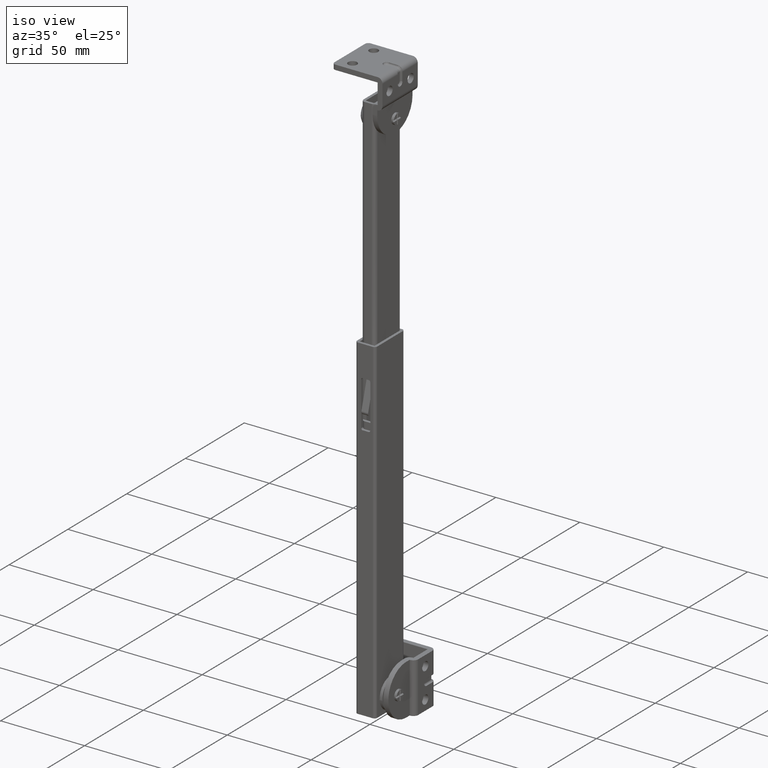
[diagram: clean part render]
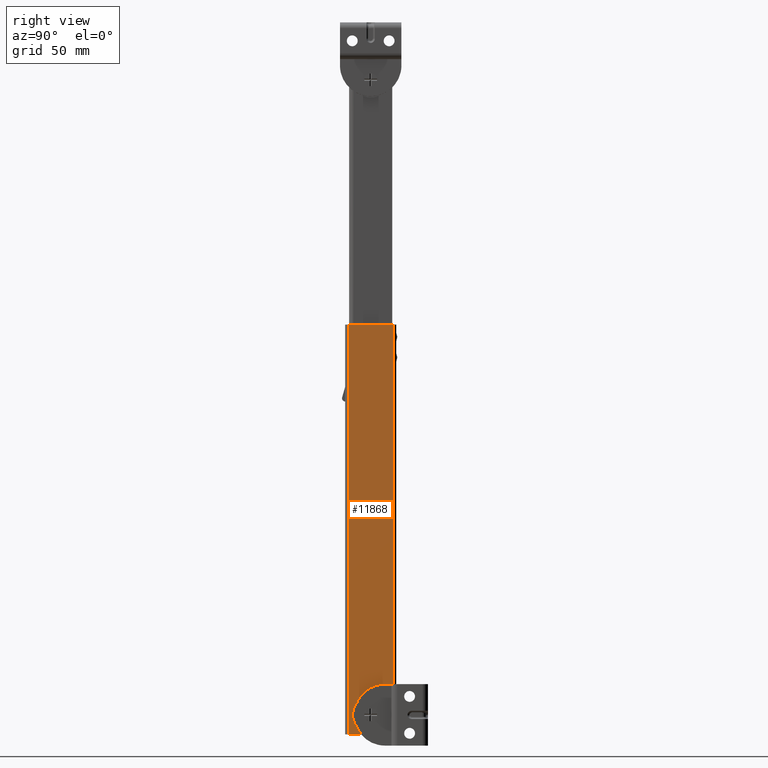
[diagram: tour spotlight — one face highlighted and labeled with its STEP entity id]
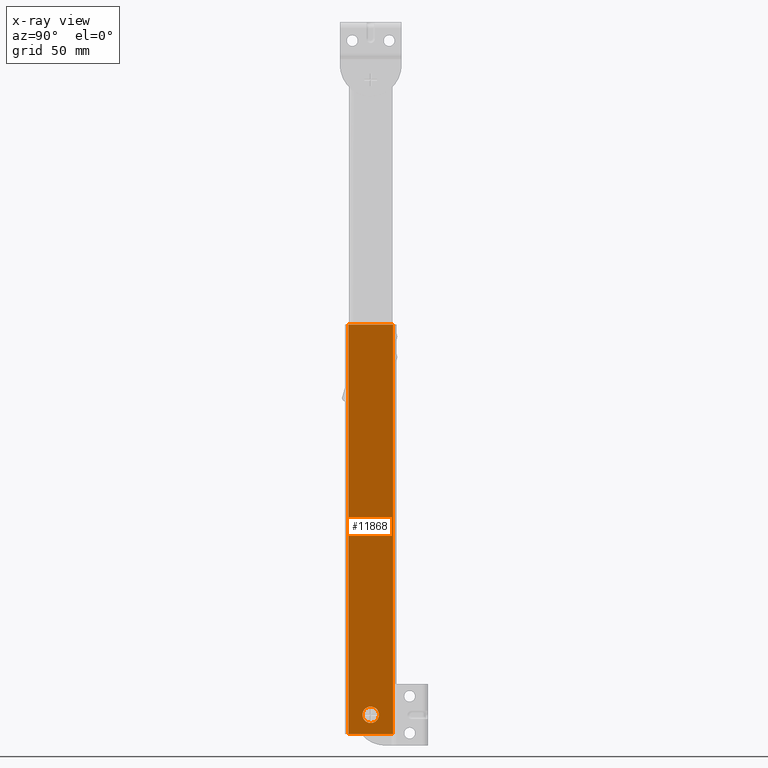
[diagram: x-ray of the same camera — body ghosted, this tour face saturated]
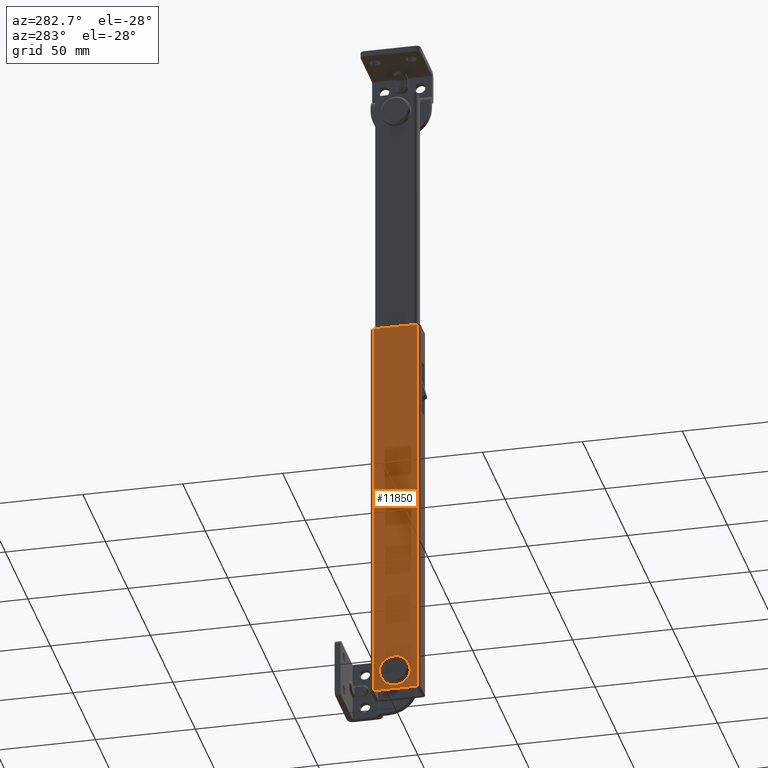
[diagram: tour spotlight — one face highlighted and labeled with its STEP entity id]
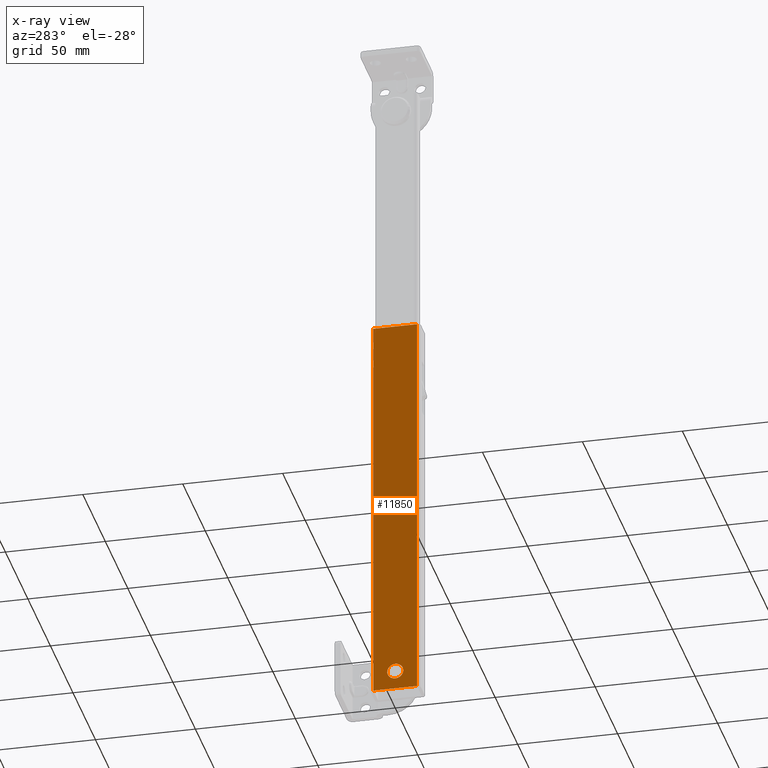
[diagram: x-ray of the same camera — body ghosted, this tour face saturated]
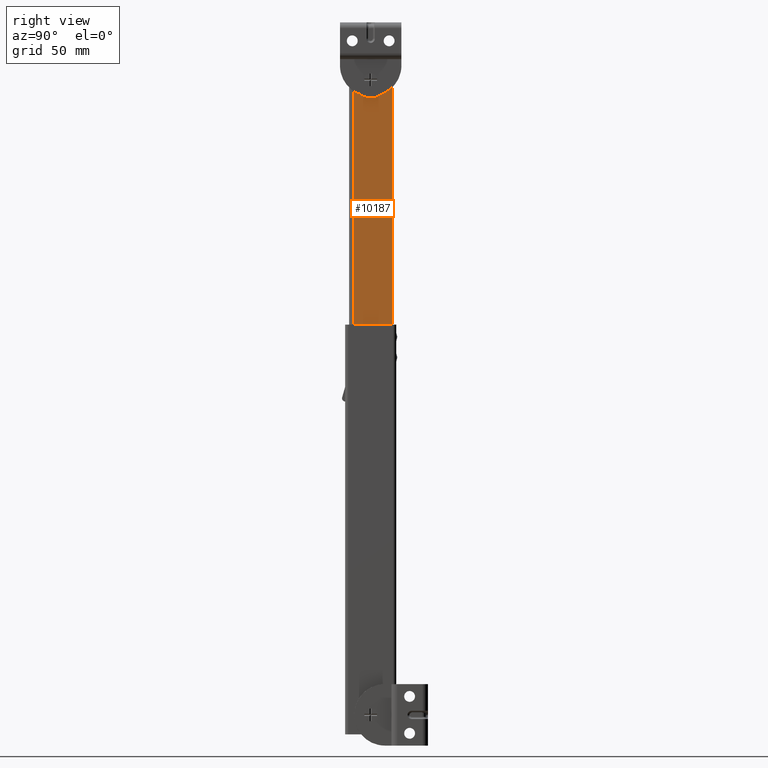
[diagram: tour spotlight — one face highlighted and labeled with its STEP entity id]
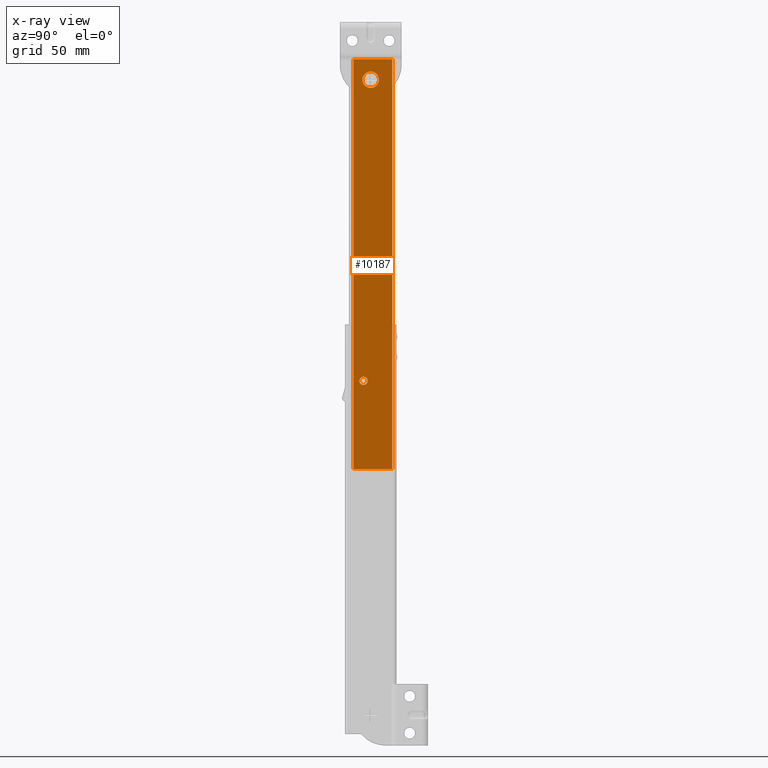
[diagram: x-ray of the same camera — body ghosted, this tour face saturated]
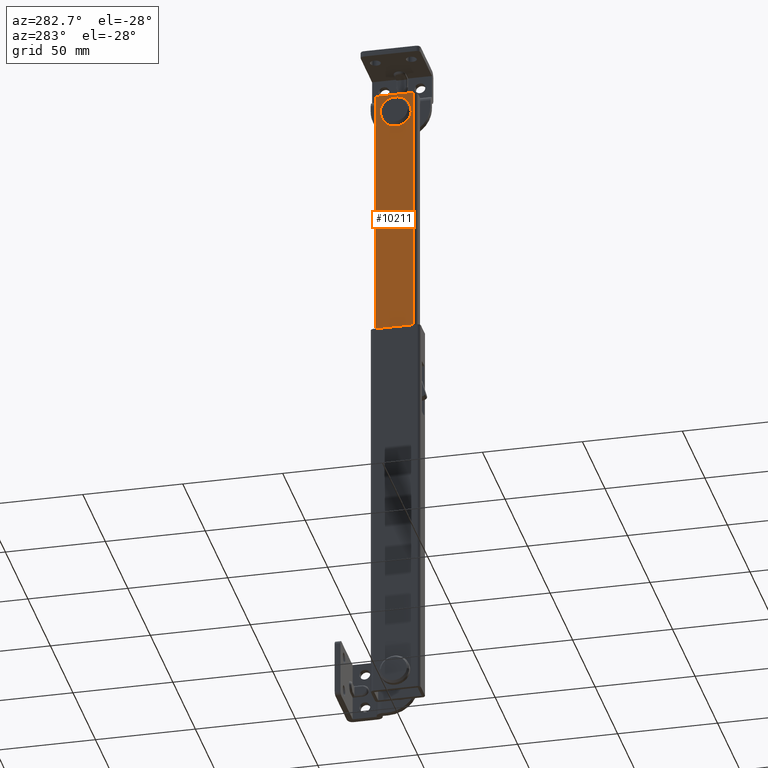
[diagram: tour spotlight — one face highlighted and labeled with its STEP entity id]
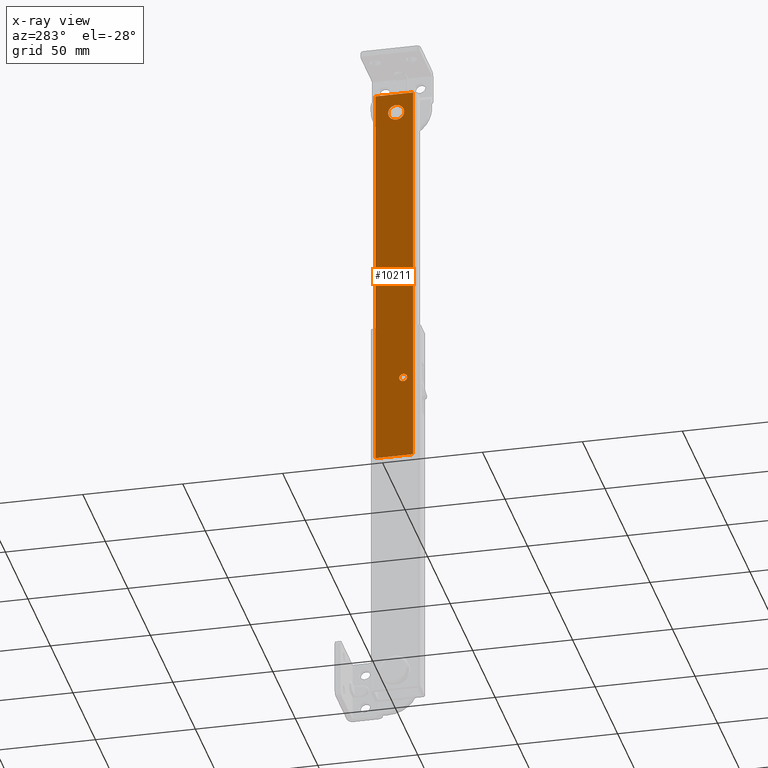
[diagram: x-ray of the same camera — body ghosted, this tour face saturated]
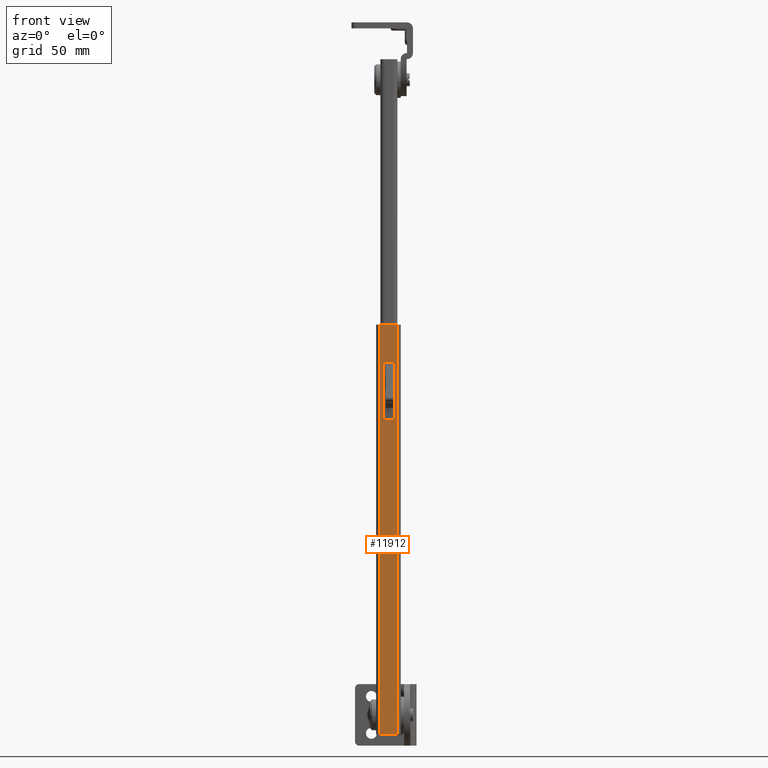
[diagram: tour spotlight — one face highlighted and labeled with its STEP entity id]
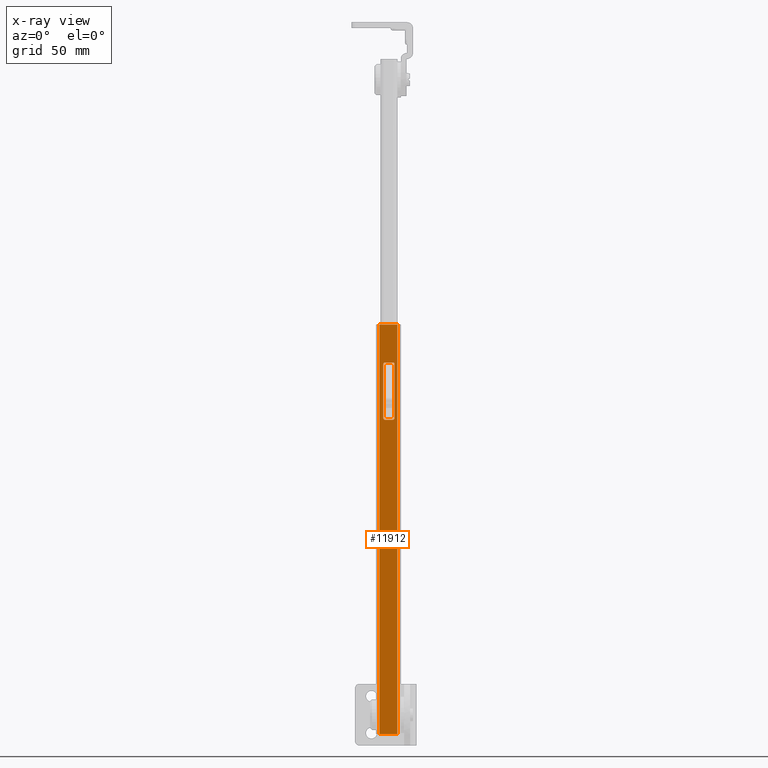
[diagram: x-ray of the same camera — body ghosted, this tour face saturated]
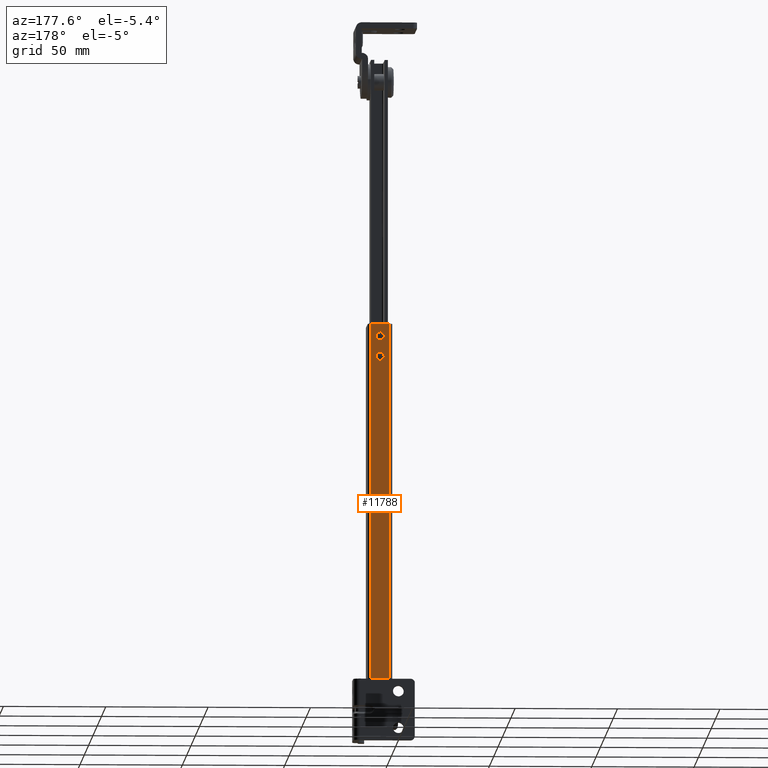
[diagram: tour spotlight — one face highlighted and labeled with its STEP entity id]
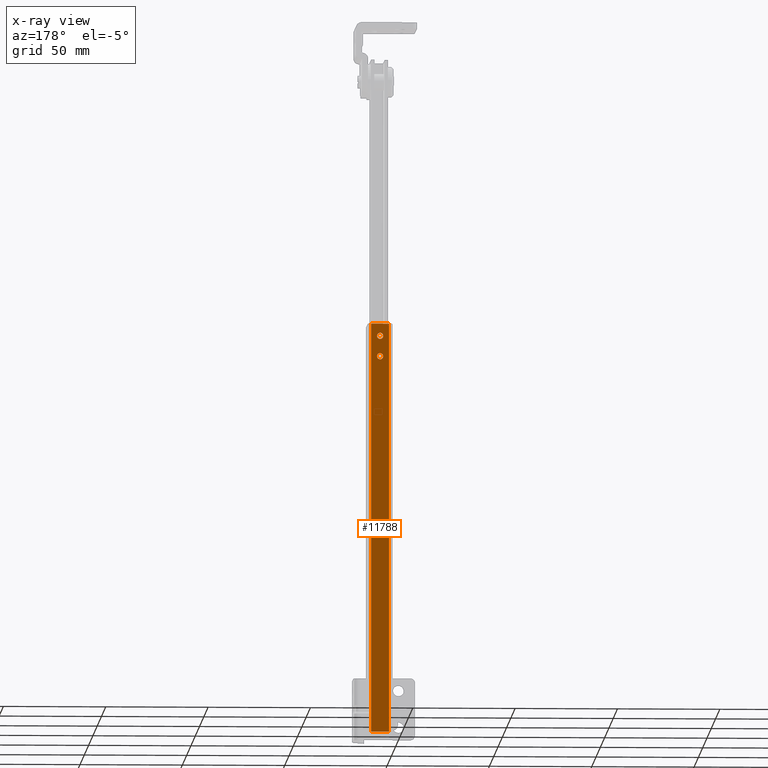
[diagram: x-ray of the same camera — body ghosted, this tour face saturated]
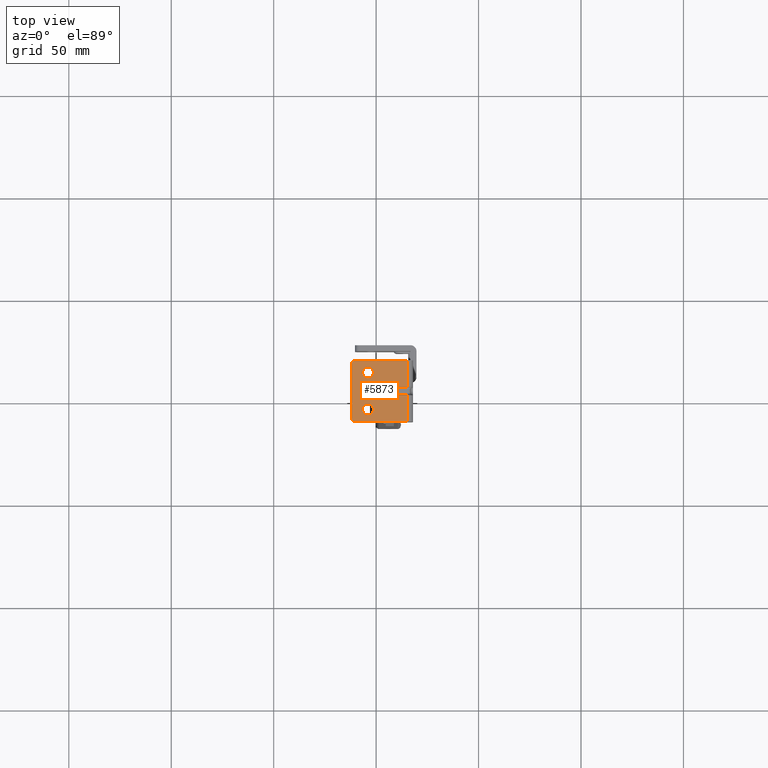
[diagram: tour spotlight — one face highlighted and labeled with its STEP entity id]
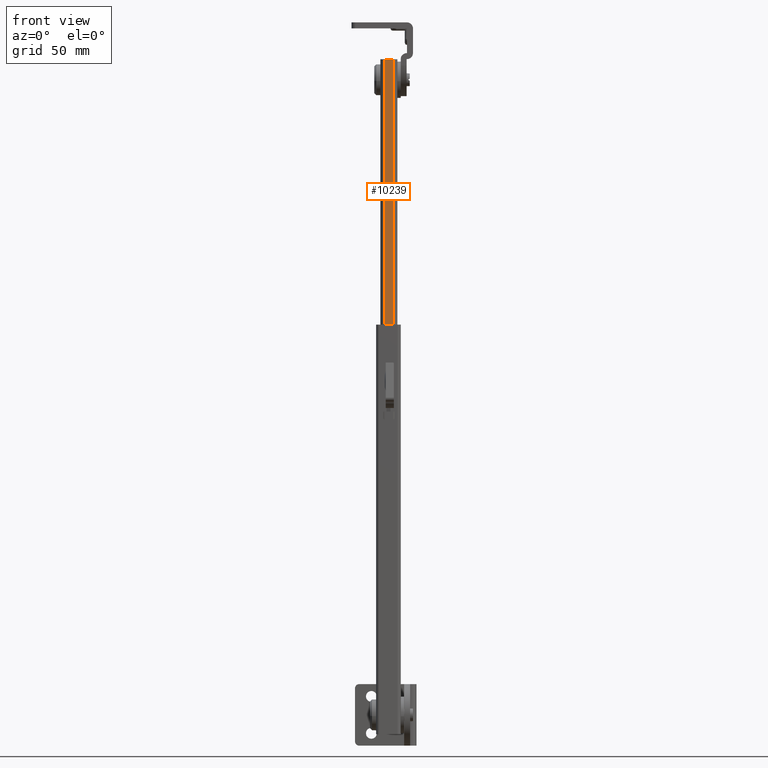
[diagram: tour spotlight — one face highlighted and labeled with its STEP entity id]
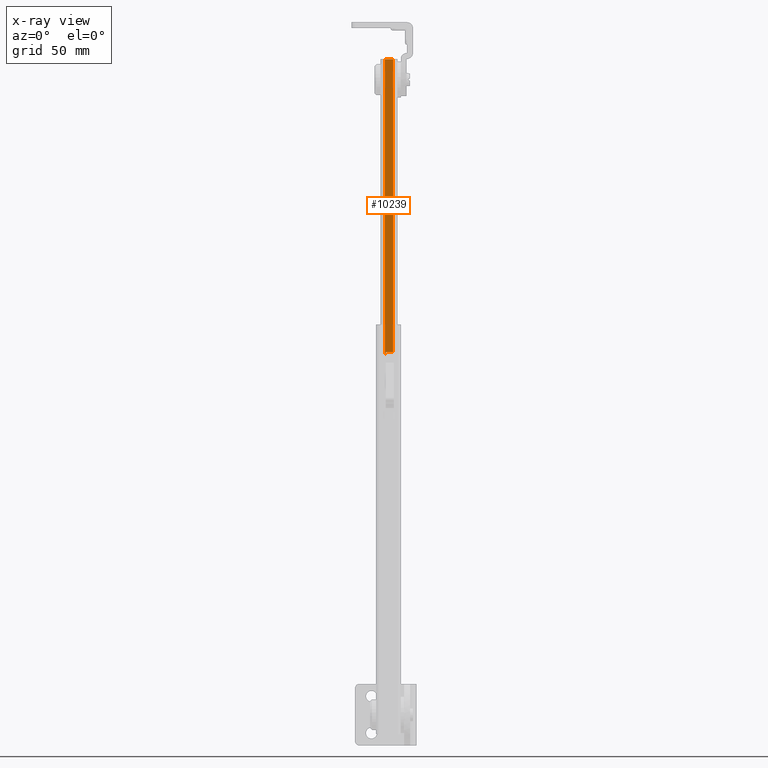
[diagram: x-ray of the same camera — body ghosted, this tour face saturated]
A machine part: a face-by-face anatomy tour. The part has 282 B-rep faces; the first image is the clean iso view, then the 8 largest visible faces are spotlighted one at a time (largest first), each with its STEP entity span.

Face 1 — right view, entity #11868. An x-ray twin of the same camera follows (body ghosted, this face saturated) — the face is partly hidden behind the body. In plain terms, the highlighted face is a freeform B-spline surface patch.
Definition (entity closure, byte-faithful):
#10322=CARTESIAN_POINT('',(12.0,-3.972038105131488,0.472136941345894));
#10323=VERTEX_POINT('',#10322);
#10329=CARTESIAN_POINT('',(12.0,0.0,-4.0));
#10330=VERTEX_POINT('',#10329);
#10331=CARTESIAN_POINT('',(11.999999999999998,-3.972038105131488,0.472136941345894));
#10332=CARTESIAN_POINT('',(11.999999999999998,-4.0,0.236896481355243));
#10333=CARTESIAN_POINT('',(12.0,-4.0,0.0));
#10334=CARTESIAN_POINT('',(12.0,-4.000000000000000,-4.000000000000000));
#10335=CARTESIAN_POINT('',(12.0,0.0,-4.0));
#10343=(BOUNDED_CURVE()B_SPLINE_CURVE(2,(#10331,#10332,#10333,#10334,#10335),.UNSPECIFIED.,.F.,.U.)B_SPLINE_CURVE_WITH_KNOTS((3,2,3),(0.229562473284279,0.250000000000000,0.500000000000000),.UNSPECIFIED.)CURVE()GEOMETRIC_REPRESENTATION_ITEM()RATIONAL_B_SPLINE_CURVE((0.956026753734400,0.976055948062586,1.0,0.707106781186548,1.0))REPRESENTATION_ITEM(''));
#10344=EDGE_CURVE('',#10323,#10330,#10343,.T.);
#10346=CARTESIAN_POINT('',(12.0,3.992539193625168,-0.244194159158003));
#10347=VERTEX_POINT('',#10346);
#10348=CARTESIAN_POINT('',(12.0,0.0,-4.0));
#10349=CARTESIAN_POINT('',(12.0,3.762824265699262,-4.000000000000001));
#10350=CARTESIAN_POINT('',(11.999999999999998,3.992539193625168,-0.244194159158003));
#10358=(BOUNDED_CURVE()B_SPLINE_CURVE(2,(#10348,#10349,#10350),.UNSPECIFIED.,.F.,.U.)B_SPLINE_CURVE_WITH_KNOTS((3,3),(0.500000000000000,0.739332962153929),.UNSPECIFIED.)CURVE()GEOMETRIC_REPRESENTATION_ITEM()RATIONAL_B_SPLINE_CURVE((1.0,0.719603993386311,0.976072041484516))REPRESENTATION_ITEM(''));
#10359=EDGE_CURVE('',#10330,#10347,#10358,.T.);
#10433=CARTESIAN_POINT('',(12.0,0.0,4.0));
#10434=VERTEX_POINT('',#10433);
#10435=CARTESIAN_POINT('',(12.0,3.992539193625169,-0.244194159158003));
#10436=CARTESIAN_POINT('',(12.000000000000004,4.0,-0.122211054215786));
#10437=CARTESIAN_POINT('',(12.0,4.0,0.0));
#10438=CARTESIAN_POINT('',(12.0,4.000000000000000,4.000000000000000));
#10439=CARTESIAN_POINT('',(12.0,0.0,4.0));
#10447=(BOUNDED_CURVE()B_SPLINE_CURVE(2,(#10435,#10436,#10437,#10438,#10439),.UNSPECIFIED.,.F.,.U.)B_SPLINE_CURVE_WITH_KNOTS((3,2,3),(0.739332962153928,0.750000000000000,1.0),.UNSPECIFIED.)CURVE()GEOMETRIC_REPRESENTATION_ITEM()RATIONAL_B_SPLINE_CURVE((0.976072041484515,0.987502787800236,1.0,0.707106781186548,1.0))REPRESENTATION_ITEM(''));
#10448=EDGE_CURVE('',#10347,#10434,#10447,.T.);
#10450=CARTESIAN_POINT('',(12.0,0.0,4.0));
#10451=CARTESIAN_POINT('',(12.0,-3.552698098907588,4.000000000000000));
#10452=CARTESIAN_POINT('',(11.999999999999998,-3.972038105131488,0.472136941345894));
#10460=(BOUNDED_CURVE()B_SPLINE_CURVE(2,(#10450,#10451,#10452),.UNSPECIFIED.,.F.,.U.)B_SPLINE_CURVE_WITH_KNOTS((3,3),(0.0,0.229562473284279),.UNSPECIFIED.)CURVE()GEOMETRIC_REPRESENTATION_ITEM()RATIONAL_B_SPLINE_CURVE((1.0,0.731050833123962,0.956026753734400))REPRESENTATION_ITEM(''));
#10461=EDGE_CURVE('',#10434,#10323,#10460,.T.);
#11375=CARTESIAN_POINT('',(11.999993999999999,-10.900001860373660,190.500000000000000));
#11376=VERTEX_POINT('',#11375);
#11392=CARTESIAN_POINT('',(12.0,10.900002000000001,190.500000000000000));
#11393=VERTEX_POINT('',#11392);
#11394=CARTESIAN_POINT('',(11.999993999999999,-10.900001860373660,190.500000000000000));
#11395=CARTESIAN_POINT('',(12.0,10.900002000000001,190.500000000000000));
#11396=QUASI_UNIFORM_CURVE('',1,(#11394,#11395),.UNSPECIFIED.,.F.,.U.);
#11397=EDGE_CURVE('',#11376,#11393,#11396,.T.);
#11547=CARTESIAN_POINT('',(12.0,10.900002000000001,-9.500000000000000));
#11548=VERTEX_POINT('',#11547);
#11562=CARTESIAN_POINT('',(11.999993999999999,-10.900001860373660,-9.500000000000000));
#11563=VERTEX_POINT('',#11562);
#11564=CARTESIAN_POINT('',(11.999993999999999,-10.900001860373660,-9.500000000000000));
#11565=CARTESIAN_POINT('',(12.0,10.900002000000001,-9.500000000000000));
#11566=QUASI_UNIFORM_CURVE('',1,(#11564,#11565),.UNSPECIFIED.,.F.,.U.);
#11567=EDGE_CURVE('',#11563,#11548,#11566,.T.);
#11690=CARTESIAN_POINT('',(12.0,10.900002000000001,-9.500000000000000));
#11691=CARTESIAN_POINT('',(12.0,10.900002000000001,190.500000000000000));
#11692=QUASI_UNIFORM_CURVE('',1,(#11690,#11691),.UNSPECIFIED.,.F.,.U.);
#11693=EDGE_CURVE('',#11548,#11393,#11692,.T.);
#11725=CARTESIAN_POINT('',(11.999993999999999,-10.900001860373660,-9.500000000000000));
#11726=CARTESIAN_POINT('',(11.999993999999999,-10.900001860373660,190.500000000000000));
#11727=QUASI_UNIFORM_CURVE('',1,(#11725,#11726),.UNSPECIFIED.,.F.,.U.);
#11728=EDGE_CURVE('',#11563,#11376,#11727,.T.);
#11851=CARTESIAN_POINT('',(12.0,11.988911663402421,200.489999612361200));
#11852=CARTESIAN_POINT('',(12.0,11.988911663402421,-19.490004976779211));
#11853=CARTESIAN_POINT('',(12.0,-11.988910939054410,200.489999612361200));
#11854=CARTESIAN_POINT('',(12.0,-11.988910939054410,-19.490004976779211));
#11855=B_SPLINE_SURFACE_WITH_KNOTS('',1,1,((#11851,#11853),(#11852,#11854)),.UNSPECIFIED.,.F.,.F.,.U.,(2,2),(2,2),(0.0,219.980004589140410),(0.0,23.977822602456840),.UNSPECIFIED.);
#11856=ORIENTED_EDGE('',*,*,#11397,.F.);
#11857=ORIENTED_EDGE('',*,*,#11728,.F.);
#11858=ORIENTED_EDGE('',*,*,#11567,.T.);
#11859=ORIENTED_EDGE('',*,*,#11693,.T.);
#11860=EDGE_LOOP('',(#11856,#11857,#11858,#11859));
#11861=FACE_OUTER_BOUND('',#11860,.T.);
#11862=ORIENTED_EDGE('',*,*,#10359,.F.);
#11863=ORIENTED_EDGE('',*,*,#10344,.F.);
#11864=ORIENTED_EDGE('',*,*,#10461,.F.);
#11865=ORIENTED_EDGE('',*,*,#10448,.F.);
#11866=EDGE_LOOP('',(#11862,#11863,#11864,#11865));
#11867=FACE_BOUND('',#11866,.T.);
#11868=ADVANCED_FACE('',(#11861,#11867),#11855,.F.);

Face 2 — auxiliary view, entity #11850. An x-ray twin of the same camera follows (body ghosted, this face saturated) — the face is partly hidden behind the body. In plain terms, the highlighted face is a freeform B-spline surface patch.
Definition (entity closure, byte-faithful):
#10519=CARTESIAN_POINT('',(-5.551115E-017,3.999847692235189,0.034906144456678));
#10520=VERTEX_POINT('',#10519);
#10526=CARTESIAN_POINT('',(0.0,0.0,-4.0));
#10527=VERTEX_POINT('',#10526);
#10528=CARTESIAN_POINT('',(0.0,0.0,-4.0));
#10529=CARTESIAN_POINT('',(0.0,4.000000000000000,-4.000000000000000));
#10530=CARTESIAN_POINT('',(0.0,4.0,0.0));
#10531=CARTESIAN_POINT('',(0.0,4.000000000000000,0.017453405746125));
#10532=CARTESIAN_POINT('',(-5.551115E-017,3.999847692235189,0.034906144456678));
#10540=(BOUNDED_CURVE()B_SPLINE_CURVE(2,(#10528,#10529,#10530,#10531,#10532),.UNSPECIFIED.,.F.,.U.)B_SPLINE_CURVE_WITH_KNOTS((3,2,3),(0.500000000000000,0.750000000000000,0.751539894551931),.UNSPECIFIED.)CURVE()GEOMETRIC_REPRESENTATION_ITEM()RATIONAL_B_SPLINE_CURVE((1.0,0.707106781186548,1.0,0.998195901312207,0.996414027598337))REPRESENTATION_ITEM(''));
#10541=EDGE_CURVE('',#10527,#10520,#10540,.T.);
#10543=CARTESIAN_POINT('',(-5.438652E-017,-3.969064854970558,-0.496512010970071));
#10544=VERTEX_POINT('',#10543);
#10545=CARTESIAN_POINT('',(-5.438652E-017,-3.969064854970558,-0.496512010970071));
#10546=CARTESIAN_POINT('',(0.0,-3.530794395848051,-4.000000000000001));
#10547=CARTESIAN_POINT('',(0.0,0.0,-4.0));
#10555=(BOUNDED_CURVE()B_SPLINE_CURVE(2,(#10545,#10546,#10547),.UNSPECIFIED.,.F.,.U.)B_SPLINE_CURVE_WITH_KNOTS((3,3),(0.271473929195963,0.500000000000000),.UNSPECIFIED.)CURVE()GEOMETRIC_REPRESENTATION_ITEM()RATIONAL_B_SPLINE_CURVE((0.954005429837573,0.732265054157658,1.0))REPRESENTATION_ITEM(''));
#10556=EDGE_CURVE('',#10544,#10527,#10555,.T.);
#10606=CARTESIAN_POINT('',(0.0,0.0,4.0));
#10607=VERTEX_POINT('',#10606);
#10608=CARTESIAN_POINT('',(0.0,0.0,4.0));
#10609=CARTESIAN_POINT('',(0.0,-4.000000000000000,4.000000000000000));
#10610=CARTESIAN_POINT('',(0.0,-4.0,0.0));
#10611=CARTESIAN_POINT('',(0.0,-4.000000000000001,-0.249219712815762));
#10612=CARTESIAN_POINT('',(-5.438652E-017,-3.969064854970558,-0.496512010970071));
#10620=(BOUNDED_CURVE()B_SPLINE_CURVE(2,(#10608,#10609,#10610,#10611,#10612),.UNSPECIFIED.,.F.,.U.)B_SPLINE_CURVE_WITH_KNOTS((3,2,3),(0.0,0.250000000000000,0.271473929195963),.UNSPECIFIED.)CURVE()GEOMETRIC_REPRESENTATION_ITEM()RATIONAL_B_SPLINE_CURVE((1.0,0.707106781186548,1.0,0.974841727028889,0.954005429837573))REPRESENTATION_ITEM(''));
#10621=EDGE_CURVE('',#10607,#10544,#10620,.T.);
#10623=CARTESIAN_POINT('',(-5.551115E-017,3.999847692235189,0.034906144456678));
#10624=CARTESIAN_POINT('',(0.0,3.965244837495980,4.000000000000000));
#10625=CARTESIAN_POINT('',(0.0,0.0,4.0));
#10633=(BOUNDED_CURVE()B_SPLINE_CURVE(2,(#10623,#10624,#10625),.UNSPECIFIED.,.F.,.U.)B_SPLINE_CURVE_WITH_KNOTS((3,3),(0.751539894551931,1.0),.UNSPECIFIED.)CURVE()GEOMETRIC_REPRESENTATION_ITEM()RATIONAL_B_SPLINE_CURVE((0.996414027598336,0.708910879874341,1.0))REPRESENTATION_ITEM(''));
#10634=EDGE_CURVE('',#10520,#10607,#10633,.T.);
#11421=CARTESIAN_POINT('',(0.000006000000008,10.900002000000001,190.500000000000000));
#11422=VERTEX_POINT('',#11421);
#11436=CARTESIAN_POINT('',(0.0,-10.900002000000001,190.500000000000000));
#11437=VERTEX_POINT('',#11436);
#11438=CARTESIAN_POINT('',(0.000006000000008,10.900002000000001,190.500000000000000));
#11439=CARTESIAN_POINT('',(0.0,-10.900002000000001,190.500000000000000));
#11440=QUASI_UNIFORM_CURVE('',1,(#11438,#11439),.UNSPECIFIED.,.F.,.U.);
#11441=EDGE_CURVE('',#11422,#11437,#11440,.T.);
#11503=CARTESIAN_POINT('',(0.0,-10.900002000000001,-9.500000000000000));
#11504=VERTEX_POINT('',#11503);
#11518=CARTESIAN_POINT('',(0.000006000000008,10.900002000000001,-9.500000000000000));
#11519=VERTEX_POINT('',#11518);
#11520=CARTESIAN_POINT('',(0.000006000000008,10.900002000000001,-9.500000000000000));
#11521=CARTESIAN_POINT('',(0.0,-10.900002000000001,-9.500000000000000));
#11522=QUASI_UNIFORM_CURVE('',1,(#11520,#11521),.UNSPECIFIED.,.F.,.U.);
#11523=EDGE_CURVE('',#11519,#11504,#11522,.T.);
#11632=CARTESIAN_POINT('',(0.0,-10.900002000000001,-9.500000000000000));
#11633=CARTESIAN_POINT('',(0.0,-10.900002000000001,190.500000000000000));
#11634=QUASI_UNIFORM_CURVE('',1,(#11632,#11633),.UNSPECIFIED.,.F.,.U.);
#11635=EDGE_CURVE('',#11504,#11437,#11634,.T.);
#11667=CARTESIAN_POINT('',(0.000006000000008,10.900002000000001,-9.500000000000000));
#11668=CARTESIAN_POINT('',(0.000006000000008,10.900002000000001,190.500000000000000));
#11669=QUASI_UNIFORM_CURVE('',1,(#11667,#11668),.UNSPECIFIED.,.F.,.U.);
#11670=EDGE_CURVE('',#11519,#11422,#11669,.T.);
#11833=CARTESIAN_POINT('',(0.0,11.988911670376750,-19.489999612361199));
#11834=CARTESIAN_POINT('',(0.0,11.988911670376750,200.490004976779200));
#11835=CARTESIAN_POINT('',(0.0,-11.988911085655079,-19.489999612361199));
#11836=CARTESIAN_POINT('',(0.0,-11.988911085655079,200.490004976779290));
#11837=B_SPLINE_SURFACE_WITH_KNOTS('',1,1,((#11833,#11835),(#11834,#11836)),.UNSPECIFIED.,.F.,.F.,.U.,(2,2),(2,2),(0.0,219.980004589140490),(0.0,23.977822756031831),.UNSPECIFIED.);
#11838=ORIENTED_EDGE('',*,*,#11441,.F.);
#11839=ORIENTED_EDGE('',*,*,#11670,.F.);
#11840=ORIENTED_EDGE('',*,*,#11523,.T.);
#11841=ORIENTED_EDGE('',*,*,#11635,.T.);
#11842=EDGE_LOOP('',(#11838,#11839,#11840,#11841));
#11843=FACE_OUTER_BOUND('',#11842,.T.);
#11844=ORIENTED_EDGE('',*,*,#10541,.T.);
#11845=ORIENTED_EDGE('',*,*,#10634,.T.);
#11846=ORIENTED_EDGE('',*,*,#10621,.T.);
#11847=ORIENTED_EDGE('',*,*,#10556,.T.);
#11848=EDGE_LOOP('',(#11844,#11845,#11846,#11847));
#11849=FACE_BOUND('',#11848,.T.);
#11850=ADVANCED_FACE('',(#11843,#11849),#11837,.F.);

Face 3 — right view, entity #10187. An x-ray twin of the same camera follows (body ghosted, this face saturated) — the face is partly hidden behind the body. In plain terms, the highlighted face is a freeform B-spline surface patch.
Definition (entity closure, byte-faithful):
#8789=CARTESIAN_POINT('',(10.399994000000021,-5.490452368084955,163.236068474418400));
#8790=VERTEX_POINT('',#8789);
#8796=CARTESIAN_POINT('',(10.399994000000021,-3.504433315964420,161.0));
#8797=VERTEX_POINT('',#8796);
#8798=CARTESIAN_POINT('',(10.399994000000021,-5.490452368084955,163.236068474418370));
#8799=CARTESIAN_POINT('',(10.399994000000019,-5.504433315964420,163.118448244462740));
#8800=CARTESIAN_POINT('',(10.399994000000021,-5.504433315964420,163.0));
#8801=CARTESIAN_POINT('',(10.399994000000021,-5.504433315964420,161.000000000000060));
#8802=CARTESIAN_POINT('',(10.399994000000021,-3.504433315964420,161.0));
#8810=(BOUNDED_CURVE()B_SPLINE_CURVE(2,(#8798,#8799,#8800,#8801,#8802),.UNSPECIFIED.,.F.,.U.)B_SPLINE_CURVE_WITH_KNOTS((3,2,3),(0.229562472646822,0.250000000000000,0.500000000000000),.UNSPECIFIED.)CURVE()GEOMETRIC_REPRESENTATION_ITEM()RATIONAL_B_SPLINE_CURVE((0.956026752484959,0.976055947315759,1.0,0.707106781186548,1.0))REPRESENTATION_ITEM(''));
#8811=EDGE_CURVE('',#8790,#8797,#8810,.T.);
#8813=CARTESIAN_POINT('',(10.399994000000021,-1.508163719403995,162.877902916298210));
#8814=VERTEX_POINT('',#8813);
#8815=CARTESIAN_POINT('',(10.399994000000021,-3.504433315964420,161.0));
#8816=CARTESIAN_POINT('',(10.399994000000021,-1.623021190900422,161.000000000000060));
#8817=CARTESIAN_POINT('',(10.399994000000024,-1.508163719403994,162.877902916298240));
#8825=(BOUNDED_CURVE()B_SPLINE_CURVE(2,(#8815,#8816,#8817),.UNSPECIFIED.,.F.,.U.)B_SPLINE_CURVE_WITH_KNOTS((3,3),(0.500000000000000,0.739332961441230),.UNSPECIFIED.)CURVE()GEOMETRIC_REPRESENTATION_ITEM()RATIONAL_B_SPLINE_CURVE((1.0,0.719603994221289,0.976072039957067))REPRESENTATION_ITEM(''));
#8826=EDGE_CURVE('',#8797,#8814,#8825,.T.);
#8900=CARTESIAN_POINT('',(10.399994000000021,-3.504433315964420,165.0));
#8901=VERTEX_POINT('',#8900);
#8902=CARTESIAN_POINT('',(10.399994000000024,-1.508163719403995,162.877902916298240));
#8903=CARTESIAN_POINT('',(10.399994000000026,-1.504433315964420,162.938894468757810));
#8904=CARTESIAN_POINT('',(10.399994000000021,-1.504433315964420,163.0));
#8905=CARTESIAN_POINT('',(10.399994000000021,-1.504433315964420,165.000000000000090));
#8906=CARTESIAN_POINT('',(10.399994000000021,-3.504433315964420,165.0));
#8914=(BOUNDED_CURVE()B_SPLINE_CURVE(2,(#8902,#8903,#8904,#8905,#8906),.UNSPECIFIED.,.F.,.U.)B_SPLINE_CURVE_WITH_KNOTS((3,2,3),(0.739332961441229,0.750000000000000,1.0),.UNSPECIFIED.)CURVE()GEOMETRIC_REPRESENTATION_ITEM()RATIONAL_B_SPLINE_CURVE((0.976072039957065,0.987502786965257,1.0,0.707106781186548,1.0))REPRESENTATION_ITEM(''));
#8915=EDGE_CURVE('',#8814,#8901,#8914,.T.);
#8917=CARTESIAN_POINT('',(10.399994000000021,-3.504433315964420,165.0));
#8918=CARTESIAN_POINT('',(10.399994000000021,-5.280782358670908,165.0));
#8919=CARTESIAN_POINT('',(10.399994000000021,-5.490452368084955,163.236068474418370));
#8927=(BOUNDED_CURVE()B_SPLINE_CURVE(2,(#8917,#8918,#8919),.UNSPECIFIED.,.F.,.U.)B_SPLINE_CURVE_WITH_KNOTS((3,3),(0.0,0.229562472646822),.UNSPECIFIED.)CURVE()GEOMETRIC_REPRESENTATION_ITEM()RATIONAL_B_SPLINE_CURVE((1.0,0.731050833870789,0.956026752484959))REPRESENTATION_ITEM(''));
#8928=EDGE_CURVE('',#8901,#8790,#8927,.T.);
#9161=CARTESIAN_POINT('',(10.399994000000021,-3.972038105131489,310.472136941345920));
#9162=VERTEX_POINT('',#9161);
#9168=CARTESIAN_POINT('',(10.399994000000021,0.0,306.0));
#9169=VERTEX_POINT('',#9168);
#9170=CARTESIAN_POINT('',(10.399994000000021,-3.972038105131489,310.472136941345870));
#9171=CARTESIAN_POINT('',(10.399994000000017,-4.0,310.236896481355300));
#9172=CARTESIAN_POINT('',(10.399994000000021,-4.0,310.0));
#9173=CARTESIAN_POINT('',(10.399994000000021,-4.000000000000000,306.000000000000060));
#9174=CARTESIAN_POINT('',(10.399994000000021,0.0,306.0));
#9182=(BOUNDED_CURVE()B_SPLINE_CURVE(2,(#9170,#9171,#9172,#9173,#9174),.UNSPECIFIED.,.F.,.U.)B_SPLINE_CURVE_WITH_KNOTS((3,2,3),(0.229562473284280,0.250000000000000,0.500000000000000),.UNSPECIFIED.)CURVE()GEOMETRIC_REPRESENTATION_ITEM()RATIONAL_B_SPLINE_CURVE((0.956026753734401,0.976055948062587,1.0,0.707106781186548,1.0))REPRESENTATION_ITEM(''));
#9183=EDGE_CURVE('',#9162,#9169,#9182,.T.);
#9185=CARTESIAN_POINT('',(10.399994000000021,3.992539193625168,309.755805840842020));
#9186=VERTEX_POINT('',#9185);
#9187=CARTESIAN_POINT('',(10.399994000000021,0.0,306.0));
#9188=CARTESIAN_POINT('',(10.399994000000021,3.762824265699213,305.999999999999940));
#9189=CARTESIAN_POINT('',(10.399994000000023,3.992539193625168,309.755805840841960));
#9197=(BOUNDED_CURVE()B_SPLINE_CURVE(2,(#9187,#9188,#9189),.UNSPECIFIED.,.F.,.U.)B_SPLINE_CURVE_WITH_KNOTS((3,3),(0.500000000000000,0.739332962153926),.UNSPECIFIED.)CURVE()GEOMETRIC_REPRESENTATION_ITEM()RATIONAL_B_SPLINE_CURVE((1.0,0.719603993386313,0.976072041484511))REPRESENTATION_ITEM(''));
#9198=EDGE_CURVE('',#9169,#9186,#9197,.T.);
#9272=CARTESIAN_POINT('',(10.399994000000021,0.0,314.0));
#9273=VERTEX_POINT('',#9272);
#9274=CARTESIAN_POINT('',(10.399994000000021,3.992539193625168,309.755805840841960));
#9275=CARTESIAN_POINT('',(10.399994000000023,4.0,309.877788945784180));
#9276=CARTESIAN_POINT('',(10.399994000000021,4.0,310.0));
#9277=CARTESIAN_POINT('',(10.399994000000021,4.000000000000000,313.999999999999940));
#9278=CARTESIAN_POINT('',(10.399994000000021,0.0,314.0));
#9286=(BOUNDED_CURVE()B_SPLINE_CURVE(2,(#9274,#9275,#9276,#9277,#9278),.UNSPECIFIED.,.F.,.U.)B_SPLINE_CURVE_WITH_KNOTS((3,2,3),(0.739332962153927,0.750000000000000,1.0),.UNSPECIFIED.)CURVE()GEOMETRIC_REPRESENTATION_ITEM()RATIONAL_B_SPLINE_CURVE((0.976072041484512,0.987502787800235,1.0,0.707106781186548,1.0))REPRESENTATION_ITEM(''));
#9287=EDGE_CURVE('',#9186,#9273,#9286,.T.);
#9289=CARTESIAN_POINT('',(10.399994000000021,0.0,314.0));
#9290=CARTESIAN_POINT('',(10.399994000000021,-3.552698098907603,313.999999999999890));
#9291=CARTESIAN_POINT('',(10.399994000000021,-3.972038105131489,310.472136941345870));
#9299=(BOUNDED_CURVE()B_SPLINE_CURVE(2,(#9289,#9290,#9291),.UNSPECIFIED.,.F.,.U.)B_SPLINE_CURVE_WITH_KNOTS((3,3),(0.0,0.229562473284280),.UNSPECIFIED.)CURVE()GEOMETRIC_REPRESENTATION_ITEM()RATIONAL_B_SPLINE_CURVE((1.0,0.731050833123961,0.956026753734401))REPRESENTATION_ITEM(''));
#9300=EDGE_CURVE('',#9273,#9162,#9299,.T.);
#9675=CARTESIAN_POINT('',(10.399994000000000,-8.400000000000130,120.0));
#9676=VERTEX_POINT('',#9675);
#9690=CARTESIAN_POINT('',(10.399994000000000,-8.400000000000130,320.0));
#9691=VERTEX_POINT('',#9690);
#9692=CARTESIAN_POINT('',(10.399994000000000,-8.400000000000130,120.0));
#9693=CARTESIAN_POINT('',(10.399994000000000,-8.400000000000130,320.0));
#9694=QUASI_UNIFORM_CURVE('',1,(#9692,#9693),.UNSPECIFIED.,.F.,.U.);
#9695=EDGE_CURVE('',#9676,#9691,#9694,.T.);
#9962=CARTESIAN_POINT('',(10.399994000000021,10.499999999999741,320.0));
#9963=VERTEX_POINT('',#9962);
#9969=CARTESIAN_POINT('',(10.399994000000021,10.499999999999799,120.0));
#9970=VERTEX_POINT('',#9969);
#9971=CARTESIAN_POINT('',(10.399994000000021,10.499999999999741,320.0));
#9972=CARTESIAN_POINT('',(10.399994000000021,10.499999999999799,120.0));
#9973=QUASI_UNIFORM_CURVE('',1,(#9971,#9972),.UNSPECIFIED.,.F.,.U.);
#9974=EDGE_CURVE('',#9963,#9970,#9973,.T.);
#10033=CARTESIAN_POINT('',(10.399994000000021,10.499999999999799,120.0));
#10034=CARTESIAN_POINT('',(10.399994000000000,-8.400000000000130,120.0));
#10035=QUASI_UNIFORM_CURVE('',1,(#10033,#10034),.UNSPECIFIED.,.F.,.U.);
#10036=EDGE_CURVE('',#9970,#9676,#10035,.T.);
#10083=CARTESIAN_POINT('',(10.399994000000000,-8.400000000000130,320.0));
#10084=CARTESIAN_POINT('',(10.399994000000021,10.499999999999741,320.0));
#10085=QUASI_UNIFORM_CURVE('',1,(#10083,#10084),.UNSPECIFIED.,.F.,.U.);
#10086=EDGE_CURVE('',#9691,#9963,#10085,.T.);
#10164=CARTESIAN_POINT('',(10.399994000000000,-9.344054608528905,110.010000387638800));
#10165=CARTESIAN_POINT('',(10.399994000000000,11.444055453424410,110.010000387638800));
#10166=CARTESIAN_POINT('',(10.399994000000000,-9.344054608528905,329.990004976779180));
#10167=CARTESIAN_POINT('',(10.399994000000000,11.444055453424410,329.990004976779180));
#10168=B_SPLINE_SURFACE_WITH_KNOTS('',1,1,((#10164,#10166),(#10165,#10167)),.UNSPECIFIED.,.F.,.F.,.U.,(2,2),(2,2),(0.0,20.788110061953319),(0.0,219.980004589140410),.UNSPECIFIED.);
#10169=ORIENTED_EDGE('',*,*,#10036,.F.);
#10170=ORIENTED_EDGE('',*,*,#9974,.F.);
#10171=ORIENTED_EDGE('',*,*,#10086,.F.);
#10172=ORIENTED_EDGE('',*,*,#9695,.F.);
#10173=EDGE_LOOP('',(#10169,#10170,#10171,#10172));
#10174=FACE_OUTER_BOUND('',#10173,.T.);
#10175=ORIENTED_EDGE('',*,*,#9198,.F.);
#10176=ORIENTED_EDGE('',*,*,#9183,.F.);
#10177=ORIENTED_EDGE('',*,*,#9300,.F.);
#10178=ORIENTED_EDGE('',*,*,#9287,.F.);
#10179=EDGE_LOOP('',(#10175,#10176,#10177,#10178));
#10180=FACE_BOUND('',#10179,.T.);
#10181=ORIENTED_EDGE('',*,*,#8826,.F.);
#10182=ORIENTED_EDGE('',*,*,#8811,.F.);
#10183=ORIENTED_EDGE('',*,*,#8928,.F.);
#10184=ORIENTED_EDGE('',*,*,#8915,.F.);
#10185=EDGE_LOOP('',(#10181,#10182,#10183,#10184));
#10186=FACE_BOUND('',#10185,.T.);
#10187=ADVANCED_FACE('',(#10174,#10180,#10186),#10168,.T.);

Face 4 — auxiliary view, entity #10211. An x-ray twin of the same camera follows (body ghosted, this face saturated) — the face is partly hidden behind the body. In plain terms, the highlighted face is a freeform B-spline surface patch.
Definition (entity closure, byte-faithful):
#8618=CARTESIAN_POINT('',(2.100006000000045,-1.508163719403995,162.877902916298210));
#8619=VERTEX_POINT('',#8618);
#8625=CARTESIAN_POINT('',(2.100006000000045,-3.504433315964420,161.0));
#8626=VERTEX_POINT('',#8625);
#8627=CARTESIAN_POINT('',(2.100006000000045,-3.504433315964420,161.0));
#8628=CARTESIAN_POINT('',(2.100006000000045,-1.623021190900422,161.000000000000060));
#8629=CARTESIAN_POINT('',(2.100006000000045,-1.508163719403994,162.877902916298240));
#8637=(BOUNDED_CURVE()B_SPLINE_CURVE(2,(#8627,#8628,#8629),.UNSPECIFIED.,.F.,.U.)B_SPLINE_CURVE_WITH_KNOTS((3,3),(0.500000000000000,0.739332961441230),.UNSPECIFIED.)CURVE()GEOMETRIC_REPRESENTATION_ITEM()RATIONAL_B_SPLINE_CURVE((1.0,0.719603994221289,0.976072039957067))REPRESENTATION_ITEM(''));
#8638=EDGE_CURVE('',#8626,#8619,#8637,.T.);
#8640=CARTESIAN_POINT('',(2.100006000000045,-5.490452368084955,163.236068474418400));
#8641=VERTEX_POINT('',#8640);
#8642=CARTESIAN_POINT('',(2.100006000000045,-5.490452368084955,163.236068474418370));
#8643=CARTESIAN_POINT('',(2.100006000000045,-5.504433315964420,163.118448244462740));
#8644=CARTESIAN_POINT('',(2.100006000000045,-5.504433315964420,163.0));
#8645=CARTESIAN_POINT('',(2.100006000000045,-5.504433315964420,161.000000000000060));
#8646=CARTESIAN_POINT('',(2.100006000000045,-3.504433315964420,161.0));
#8654=(BOUNDED_CURVE()B_SPLINE_CURVE(2,(#8642,#8643,#8644,#8645,#8646),.UNSPECIFIED.,.F.,.U.)B_SPLINE_CURVE_WITH_KNOTS((3,2,3),(0.229562472646822,0.250000000000000,0.500000000000000),.UNSPECIFIED.)CURVE()GEOMETRIC_REPRESENTATION_ITEM()RATIONAL_B_SPLINE_CURVE((0.956026752484959,0.976055947315759,1.0,0.707106781186548,1.0))REPRESENTATION_ITEM(''));
#8655=EDGE_CURVE('',#8641,#8626,#8654,.T.);
#8699=CARTESIAN_POINT('',(2.100006000000045,-3.504433315964420,165.0));
#8700=VERTEX_POINT('',#8699);
#8701=CARTESIAN_POINT('',(2.100006000000045,-3.504433315964420,165.0));
#8702=CARTESIAN_POINT('',(2.100006000000045,-5.280782358670908,165.0));
#8703=CARTESIAN_POINT('',(2.100006000000045,-5.490452368084955,163.236068474418370));
#8711=(BOUNDED_CURVE()B_SPLINE_CURVE(2,(#8701,#8702,#8703),.UNSPECIFIED.,.F.,.U.)B_SPLINE_CURVE_WITH_KNOTS((3,3),(0.0,0.229562472646822),.UNSPECIFIED.)CURVE()GEOMETRIC_REPRESENTATION_ITEM()RATIONAL_B_SPLINE_CURVE((1.0,0.731050833870789,0.956026752484959))REPRESENTATION_ITEM(''));
#8712=EDGE_CURVE('',#8700,#8641,#8711,.T.);
#8714=CARTESIAN_POINT('',(2.100006000000045,-1.508163719403995,162.877902916298240));
#8715=CARTESIAN_POINT('',(2.100006000000045,-1.504433315964420,162.938894468757810));
#8716=CARTESIAN_POINT('',(2.100006000000045,-1.504433315964420,163.0));
#8717=CARTESIAN_POINT('',(2.100006000000045,-1.504433315964420,165.000000000000090));
#8718=CARTESIAN_POINT('',(2.100006000000045,-3.504433315964420,165.0));
#8726=(BOUNDED_CURVE()B_SPLINE_CURVE(2,(#8714,#8715,#8716,#8717,#8718),.UNSPECIFIED.,.F.,.U.)B_SPLINE_CURVE_WITH_KNOTS((3,2,3),(0.739332961441229,0.750000000000000,1.0),.UNSPECIFIED.)CURVE()GEOMETRIC_REPRESENTATION_ITEM()RATIONAL_B_SPLINE_CURVE((0.976072039957065,0.987502786965257,1.0,0.707106781186548,1.0))REPRESENTATION_ITEM(''));
#8727=EDGE_CURVE('',#8619,#8700,#8726,.T.);
#8990=CARTESIAN_POINT('',(2.100006000000045,3.992539193625168,309.755805840842020));
#8991=VERTEX_POINT('',#8990);
#8997=CARTESIAN_POINT('',(2.100006000000045,0.0,306.0));
#8998=VERTEX_POINT('',#8997);
#8999=CARTESIAN_POINT('',(2.100006000000045,0.0,306.0));
#9000=CARTESIAN_POINT('',(2.100006000000046,3.762824265699213,305.999999999999940));
#9001=CARTESIAN_POINT('',(2.100006000000045,3.992539193625168,309.755805840841960));
#9009=(BOUNDED_CURVE()B_SPLINE_CURVE(2,(#8999,#9000,#9001),.UNSPECIFIED.,.F.,.U.)B_SPLINE_CURVE_WITH_KNOTS((3,3),(0.500000000000000,0.739332962153926),.UNSPECIFIED.)CURVE()GEOMETRIC_REPRESENTATION_ITEM()RATIONAL_B_SPLINE_CURVE((1.0,0.719603993386313,0.976072041484511))REPRESENTATION_ITEM(''));
#9010=EDGE_CURVE('',#8998,#8991,#9009,.T.);
#9012=CARTESIAN_POINT('',(2.100006000000045,-3.972038105131489,310.472136941345920));
#9013=VERTEX_POINT('',#9012);
#9014=CARTESIAN_POINT('',(2.100006000000046,-3.972038105131489,310.472136941345870));
#9015=CARTESIAN_POINT('',(2.100006000000045,-4.0,310.236896481355300));
#9016=CARTESIAN_POINT('',(2.100006000000045,-4.0,310.0));
#9017=CARTESIAN_POINT('',(2.100006000000045,-4.000000000000000,306.000000000000060));
#9018=CARTESIAN_POINT('',(2.100006000000045,0.0,306.0));
#9026=(BOUNDED_CURVE()B_SPLINE_CURVE(2,(#9014,#9015,#9016,#9017,#9018),.UNSPECIFIED.,.F.,.U.)B_SPLINE_CURVE_WITH_KNOTS((3,2,3),(0.229562473284280,0.250000000000000,0.500000000000000),.UNSPECIFIED.)CURVE()GEOMETRIC_REPRESENTATION_ITEM()RATIONAL_B_SPLINE_CURVE((0.956026753734401,0.976055948062587,1.0,0.707106781186548,1.0))REPRESENTATION_ITEM(''));
#9027=EDGE_CURVE('',#9013,#8998,#9026,.T.);
#9071=CARTESIAN_POINT('',(2.100006000000045,0.0,314.0));
#9072=VERTEX_POINT('',#9071);
#9073=CARTESIAN_POINT('',(2.100006000000045,0.0,314.0));
#9074=CARTESIAN_POINT('',(2.100006000000046,-3.552698098907603,313.999999999999890));
#9075=CARTESIAN_POINT('',(2.100006000000046,-3.972038105131489,310.472136941345870));
#9083=(BOUNDED_CURVE()B_SPLINE_CURVE(2,(#9073,#9074,#9075),.UNSPECIFIED.,.F.,.U.)B_SPLINE_CURVE_WITH_KNOTS((3,3),(0.0,0.229562473284280),.UNSPECIFIED.)CURVE()GEOMETRIC_REPRESENTATION_ITEM()RATIONAL_B_SPLINE_CURVE((1.0,0.731050833123961,0.956026753734401))REPRESENTATION_ITEM(''));
#9084=EDGE_CURVE('',#9072,#9013,#9083,.T.);
#9086=CARTESIAN_POINT('',(2.100006000000046,3.992539193625168,309.755805840841960));
#9087=CARTESIAN_POINT('',(2.100006000000045,4.0,309.877788945784180));
#9088=CARTESIAN_POINT('',(2.100006000000045,4.0,310.0));
#9089=CARTESIAN_POINT('',(2.100006000000045,4.000000000000000,313.999999999999940));
#9090=CARTESIAN_POINT('',(2.100006000000045,0.0,314.0));
#9098=(BOUNDED_CURVE()B_SPLINE_CURVE(2,(#9086,#9087,#9088,#9089,#9090),.UNSPECIFIED.,.F.,.U.)B_SPLINE_CURVE_WITH_KNOTS((3,2,3),(0.739332962153927,0.750000000000000,1.0),.UNSPECIFIED.)CURVE()GEOMETRIC_REPRESENTATION_ITEM()RATIONAL_B_SPLINE_CURVE((0.976072041484512,0.987502787800235,1.0,0.707106781186548,1.0))REPRESENTATION_ITEM(''));
#9099=EDGE_CURVE('',#8991,#9072,#9098,.T.);
#9744=CARTESIAN_POINT('',(2.100006000000095,-8.400000000000130,320.0));
#9745=VERTEX_POINT('',#9744);
#9759=CARTESIAN_POINT('',(2.100006000000095,-8.400000000000130,120.0));
#9760=VERTEX_POINT('',#9759);
#9761=CARTESIAN_POINT('',(2.100006000000095,-8.400000000000130,320.0));
#9762=CARTESIAN_POINT('',(2.100006000000095,-8.400000000000130,120.0));
#9763=QUASI_UNIFORM_CURVE('',1,(#9761,#9762),.UNSPECIFIED.,.F.,.U.);
#9764=EDGE_CURVE('',#9745,#9760,#9763,.T.);
#10005=CARTESIAN_POINT('',(2.100006000000045,10.499999999999799,120.0));
#10006=VERTEX_POINT('',#10005);
#10007=CARTESIAN_POINT('',(2.100006000000045,10.499999999999799,120.0));
#10008=CARTESIAN_POINT('',(2.100006000000095,-8.400000000000130,120.0));
#10009=QUASI_UNIFORM_CURVE('',1,(#10007,#10008),.UNSPECIFIED.,.F.,.U.);
#10010=EDGE_CURVE('',#10006,#9760,#10009,.T.);
#10050=CARTESIAN_POINT('',(2.100006000000045,10.499999999999741,320.0));
#10051=VERTEX_POINT('',#10050);
#10052=CARTESIAN_POINT('',(2.100006000000045,10.499999999999741,320.0));
#10053=CARTESIAN_POINT('',(2.100006000000045,10.499999999999799,120.0));
#10054=QUASI_UNIFORM_CURVE('',1,(#10052,#10053),.UNSPECIFIED.,.F.,.U.);
#10055=EDGE_CURVE('',#10051,#10006,#10054,.T.);
#10107=CARTESIAN_POINT('',(2.100006000000095,-8.400000000000130,320.0));
#10108=CARTESIAN_POINT('',(2.100006000000045,10.499999999999741,320.0));
#10109=QUASI_UNIFORM_CURVE('',1,(#10107,#10108),.UNSPECIFIED.,.F.,.U.);
#10110=EDGE_CURVE('',#9745,#10051,#10109,.T.);
#10188=CARTESIAN_POINT('',(2.100006000000095,-9.344054608528905,110.010000387638800));
#10189=CARTESIAN_POINT('',(2.100006000000095,11.444055453424410,110.010000387638800));
#10190=CARTESIAN_POINT('',(2.100006000000095,-9.344054608528905,329.990004976779180));
#10191=CARTESIAN_POINT('',(2.100006000000095,11.444055453424410,329.990004976779180));
#10192=B_SPLINE_SURFACE_WITH_KNOTS('',1,1,((#10188,#10190),(#10189,#10191)),.UNSPECIFIED.,.F.,.F.,.U.,(2,2),(2,2),(0.0,20.788110061953319),(0.0,219.980004589140410),.UNSPECIFIED.);
#10193=ORIENTED_EDGE('',*,*,#10110,.T.);
#10194=ORIENTED_EDGE('',*,*,#10055,.T.);
#10195=ORIENTED_EDGE('',*,*,#10010,.T.);
#10196=ORIENTED_EDGE('',*,*,#9764,.F.);
#10197=EDGE_LOOP('',(#10193,#10194,#10195,#10196));
#10198=FACE_OUTER_BOUND('',#10197,.T.);
#10199=ORIENTED_EDGE('',*,*,#9010,.T.);
#10200=ORIENTED_EDGE('',*,*,#9099,.T.);
#10201=ORIENTED_EDGE('',*,*,#9084,.T.);
#10202=ORIENTED_EDGE('',*,*,#9027,.T.);
#10203=EDGE_LOOP('',(#10199,#10200,#10201,#10202));
#10204=FACE_BOUND('',#10203,.T.);
#10205=ORIENTED_EDGE('',*,*,#8638,.T.);
#10206=ORIENTED_EDGE('',*,*,#8727,.T.);
#10207=ORIENTED_EDGE('',*,*,#8712,.T.);
#10208=ORIENTED_EDGE('',*,*,#8655,.T.);
#10209=EDGE_LOOP('',(#10205,#10206,#10207,#10208));
#10210=FACE_BOUND('',#10209,.T.);
#10211=ADVANCED_FACE('',(#10198,#10204,#10210),#10192,.F.);

Face 5 — front view, entity #11912. An x-ray twin of the same camera follows (body ghosted, this face saturated) — the face is partly hidden behind the body. In plain terms, the highlighted face is a freeform B-spline surface patch.
Definition (entity closure, byte-faithful):
#11041=CARTESIAN_POINT('',(9.0,-12.500000000000000,145.000000157079600));
#11042=VERTEX_POINT('',#11041);
#11065=CARTESIAN_POINT('',(8.0,-12.500000000000000,144.0));
#11066=VERTEX_POINT('',#11065);
#11072=CARTESIAN_POINT('',(8.999999999999988,-12.500000000000000,145.000000157079600));
#11073=CARTESIAN_POINT('',(9.000000065064494,-12.499999999999996,144.585786548698930));
#11074=CARTESIAN_POINT('',(8.707106836722570,-12.500000000000000,144.292893274349500));
#11075=CARTESIAN_POINT('',(8.414213608380646,-12.499999999999996,144.0));
#11076=CARTESIAN_POINT('',(8.0,-12.500000000000000,144.0));
#11084=(BOUNDED_CURVE()B_SPLINE_CURVE(2,(#11072,#11073,#11074,#11075,#11076),.UNSPECIFIED.,.F.,.U.)B_SPLINE_CURVE_WITH_KNOTS((3,2,3),(0.0,0.500000000000000,1.0),.UNSPECIFIED.)CURVE()GEOMETRIC_REPRESENTATION_ITEM()RATIONAL_B_SPLINE_CURVE((1.0,0.923879517483346,1.0,0.923879517483346,1.0))REPRESENTATION_ITEM(''));
#11085=EDGE_CURVE('',#11042,#11066,#11084,.T.);
#11102=CARTESIAN_POINT('',(4.500000052360081,-12.500000000000000,144.0));
#11103=VERTEX_POINT('',#11102);
#11109=CARTESIAN_POINT('',(4.500000052360081,-12.500000000000000,144.0));
#11110=CARTESIAN_POINT('',(8.0,-12.500000000000000,144.0));
#11111=QUASI_UNIFORM_CURVE('',1,(#11109,#11110),.UNSPECIFIED.,.F.,.U.);
#11112=EDGE_CURVE('',#11103,#11066,#11111,.T.);
#11150=CARTESIAN_POINT('',(3.500000000000000,-12.500000000000000,145.0));
#11151=VERTEX_POINT('',#11150);
#11157=CARTESIAN_POINT('',(4.500000052360081,-12.500000000000000,144.0));
#11158=CARTESIAN_POINT('',(4.085786474651131,-12.500000000000000,143.999999978311820));
#11159=CARTESIAN_POINT('',(3.792893237325666,-12.500000000000000,144.292893200301390));
#11160=CARTESIAN_POINT('',(3.500000000000200,-12.500000000000000,144.585786422291050));
#11161=CARTESIAN_POINT('',(3.500000000000200,-12.500000000000000,145.0));
#11169=(BOUNDED_CURVE()B_SPLINE_CURVE(2,(#11157,#11158,#11159,#11160,#11161),.UNSPECIFIED.,.F.,.U.)B_SPLINE_CURVE_WITH_KNOTS((3,2,3),(0.0,0.500000000000000,1.0),.UNSPECIFIED.)CURVE()GEOMETRIC_REPRESENTATION_ITEM()RATIONAL_B_SPLINE_CURVE((1.0,0.923879527501972,1.0,0.923879527501972,1.0))REPRESENTATION_ITEM(''));
#11170=EDGE_CURVE('',#11103,#11151,#11169,.T.);
#11187=CARTESIAN_POINT('',(3.500000000000200,-12.500000000000000,171.0));
#11188=VERTEX_POINT('',#11187);
#11194=CARTESIAN_POINT('',(3.500000000000200,-12.500000000000000,171.0));
#11195=CARTESIAN_POINT('',(3.500000000000000,-12.500000000000000,145.0));
#11196=QUASI_UNIFORM_CURVE('',1,(#11194,#11195),.UNSPECIFIED.,.F.,.U.);
#11197=EDGE_CURVE('',#11188,#11151,#11196,.T.);
#11233=CARTESIAN_POINT('',(4.500000000000200,-12.500000000000000,172.0));
#11234=VERTEX_POINT('',#11233);
#11240=CARTESIAN_POINT('',(3.500000000000200,-12.500000000000000,171.0));
#11241=CARTESIAN_POINT('',(3.500000000000200,-12.500000000000000,172.000000000000030));
#11242=CARTESIAN_POINT('',(4.500000000000200,-12.500000000000000,172.0));
#11250=(BOUNDED_CURVE()B_SPLINE_CURVE(2,(#11240,#11241,#11242),.UNSPECIFIED.,.F.,.U.)CURVE()GEOMETRIC_REPRESENTATION_ITEM()QUASI_UNIFORM_CURVE()RATIONAL_B_SPLINE_CURVE((1.0,0.707106781186548,1.0))REPRESENTATION_ITEM(''));
#11251=EDGE_CURVE('',#11188,#11234,#11250,.T.);
#11268=CARTESIAN_POINT('',(8.000000052359880,-12.500000000000000,172.0));
#11269=VERTEX_POINT('',#11268);
#11275=CARTESIAN_POINT('',(8.000000052359880,-12.500000000000000,172.0));
#11276=CARTESIAN_POINT('',(4.500000000000200,-12.500000000000000,172.0));
#11277=QUASI_UNIFORM_CURVE('',1,(#11275,#11276),.UNSPECIFIED.,.F.,.U.);
#11278=EDGE_CURVE('',#11269,#11234,#11277,.T.);
#11316=CARTESIAN_POINT('',(9.0,-12.500000000000000,170.999999912733500));
#11317=VERTEX_POINT('',#11316);
#11323=CARTESIAN_POINT('',(8.000000052359880,-12.500000000000000,172.0));
#11324=CARTESIAN_POINT('',(8.414213624956886,-12.500000000000004,171.999999978311820));
#11325=CARTESIAN_POINT('',(8.707106830551927,-12.500000000000000,171.707106731821200));
#11326=CARTESIAN_POINT('',(9.000000036146965,-12.500000000000004,171.414213485330580));
#11327=CARTESIAN_POINT('',(8.999999999999996,-12.500000000000000,170.999999912733500));
#11335=(BOUNDED_CURVE()B_SPLINE_CURVE(2,(#11323,#11324,#11325,#11326,#11327),.UNSPECIFIED.,.F.,.U.)B_SPLINE_CURVE_WITH_KNOTS((3,2,3),(0.0,0.500000000000000,1.0),.UNSPECIFIED.)CURVE()GEOMETRIC_REPRESENTATION_ITEM()RATIONAL_B_SPLINE_CURVE((1.0,0.923879529171740,1.0,0.923879529171740,1.0))REPRESENTATION_ITEM(''));
#11336=EDGE_CURVE('',#11269,#11317,#11335,.T.);
#11352=CARTESIAN_POINT('',(9.0,-12.500000000000000,145.000000157079600));
#11353=CARTESIAN_POINT('',(9.0,-12.500000000000000,170.999999912733500));
#11354=QUASI_UNIFORM_CURVE('',1,(#11352,#11353),.UNSPECIFIED.,.F.,.U.);
#11355=EDGE_CURVE('',#11042,#11317,#11354,.T.);
#11366=CARTESIAN_POINT('',(1.597476178661950,-12.500000000000000,190.500000000000000));
#11367=VERTEX_POINT('',#11366);
#11368=CARTESIAN_POINT('',(10.399994083775800,-12.500002000000000,190.500000000000000));
#11369=VERTEX_POINT('',#11368);
#11370=CARTESIAN_POINT('',(1.597476178661950,-12.500000000000000,190.500000000000000));
#11371=CARTESIAN_POINT('',(10.399994083775800,-12.500002000000000,190.500000000000000));
#11372=QUASI_UNIFORM_CURVE('',1,(#11370,#11371),.UNSPECIFIED.,.F.,.U.);
#11373=EDGE_CURVE('',#11367,#11369,#11372,.T.);
#11494=CARTESIAN_POINT('',(1.597476178661950,-12.500000000000000,-9.500000000000000));
#11495=VERTEX_POINT('',#11494);
#11496=CARTESIAN_POINT('',(10.399994083775800,-12.500002000000000,-9.500000000000000));
#11497=VERTEX_POINT('',#11496);
#11498=CARTESIAN_POINT('',(1.597476178661950,-12.500000000000000,-9.500000000000000));
#11499=CARTESIAN_POINT('',(10.399994083775800,-12.500002000000000,-9.500000000000000));
#11500=QUASI_UNIFORM_CURVE('',1,(#11498,#11499),.UNSPECIFIED.,.F.,.U.);
#11501=EDGE_CURVE('',#11495,#11497,#11500,.T.);
#11638=CARTESIAN_POINT('',(1.597476178661950,-12.500000000000000,-9.500000000000000));
#11639=CARTESIAN_POINT('',(1.597476178661950,-12.500000000000000,190.500000000000000));
#11640=QUASI_UNIFORM_CURVE('',1,(#11638,#11639),.UNSPECIFIED.,.F.,.U.);
#11641=EDGE_CURVE('',#11495,#11367,#11640,.T.);
#11719=CARTESIAN_POINT('',(10.399994083775800,-12.500002000000000,-9.500000000000000));
#11720=CARTESIAN_POINT('',(10.399994083775800,-12.500002000000000,190.500000000000000));
#11721=QUASI_UNIFORM_CURVE('',1,(#11719,#11720),.UNSPECIFIED.,.F.,.U.);
#11722=EDGE_CURVE('',#11497,#11369,#11721,.T.);
#11891=CARTESIAN_POINT('',(1.157790375179537,-12.500000000000000,-19.489999612361199));
#11892=CARTESIAN_POINT('',(1.157790375179537,-12.500000000000000,200.490004976779290));
#11893=CARTESIAN_POINT('',(10.839679415054359,-12.500000000000000,-19.489999612361199));
#11894=CARTESIAN_POINT('',(10.839679415054359,-12.500000000000000,200.490004976779290));
#11895=B_SPLINE_SURFACE_WITH_KNOTS('',1,1,((#11891,#11893),(#11892,#11894)),.UNSPECIFIED.,.F.,.F.,.U.,(2,2),(2,2),(0.0,219.980004589140490),(0.0,9.681889039874822),.UNSPECIFIED.);
#11896=ORIENTED_EDGE('',*,*,#11373,.F.);
#11897=ORIENTED_EDGE('',*,*,#11641,.F.);
#11898=ORIENTED_EDGE('',*,*,#11501,.T.);
#11899=ORIENTED_EDGE('',*,*,#11722,.T.);
#11900=EDGE_LOOP('',(#11896,#11897,#11898,#11899));
#11901=FACE_OUTER_BOUND('',#11900,.T.);
#11902=ORIENTED_EDGE('',*,*,#11355,.F.);
#11903=ORIENTED_EDGE('',*,*,#11085,.T.);
#11904=ORIENTED_EDGE('',*,*,#11112,.F.);
#11905=ORIENTED_EDGE('',*,*,#11170,.T.);
#11906=ORIENTED_EDGE('',*,*,#11197,.F.);
#11907=ORIENTED_EDGE('',*,*,#11251,.T.);
#11908=ORIENTED_EDGE('',*,*,#11278,.F.);
#11909=ORIENTED_EDGE('',*,*,#11336,.T.);
#11910=EDGE_LOOP('',(#11902,#11903,#11904,#11905,#11906,#11907,#11908,#11909));
#11911=FACE_BOUND('',#11910,.T.);
#11912=ADVANCED_FACE('',(#11901,#11911),#11895,.F.);

Face 6 — auxiliary view, entity #11788. An x-ray twin of the same camera follows (body ghosted, this face saturated) — the face is partly hidden behind the body. In plain terms, the highlighted face is a freeform B-spline surface patch.
Definition (entity closure, byte-faithful):
#10694=CARTESIAN_POINT('',(7.489514289281042,12.500000000000000,174.677051354209990));
#10695=VERTEX_POINT('',#10694);
#10701=CARTESIAN_POINT('',(6.0,12.500000000000000,173.0));
#10702=VERTEX_POINT('',#10701);
#10703=CARTESIAN_POINT('',(7.489514289281042,12.499999999999996,174.677051354209940));
#10704=CARTESIAN_POINT('',(7.500000000000000,12.500000000000002,174.588836181726260));
#10705=CARTESIAN_POINT('',(7.500000000000000,12.500000000000000,174.500000000000000));
#10706=CARTESIAN_POINT('',(7.500000000000000,12.500000000000000,172.999999999999970));
#10707=CARTESIAN_POINT('',(6.0,12.500000000000000,173.0));
#10715=(BOUNDED_CURVE()B_SPLINE_CURVE(2,(#10703,#10704,#10705,#10706,#10707),.UNSPECIFIED.,.F.,.U.)B_SPLINE_CURVE_WITH_KNOTS((3,2,3),(0.229562473010769,0.250000000000000,0.500000000000000),.UNSPECIFIED.)CURVE()GEOMETRIC_REPRESENTATION_ITEM()RATIONAL_B_SPLINE_CURVE((0.956026753198310,0.976055947742150,1.0,0.707106781186548,1.0))REPRESENTATION_ITEM(''));
#10716=EDGE_CURVE('',#10695,#10702,#10715,.T.);
#10718=CARTESIAN_POINT('',(4.502797802476657,12.500000000000000,174.408427188908090));
#10719=VERTEX_POINT('',#10718);
#10720=CARTESIAN_POINT('',(6.0,12.500000000000000,173.0));
#10721=CARTESIAN_POINT('',(4.588940903021047,12.500000000000000,173.000000000000060));
#10722=CARTESIAN_POINT('',(4.502797802476657,12.499999999999998,174.408427188908120));
#10730=(BOUNDED_CURVE()B_SPLINE_CURVE(2,(#10720,#10721,#10722),.UNSPECIFIED.,.F.,.U.)B_SPLINE_CURVE_WITH_KNOTS((3,3),(0.500000000000000,0.739332961829477),.UNSPECIFIED.)CURVE()GEOMETRIC_REPRESENTATION_ITEM()RATIONAL_B_SPLINE_CURVE((1.0,0.719603993766429,0.976072040789155))REPRESENTATION_ITEM(''));
#10731=EDGE_CURVE('',#10702,#10719,#10730,.T.);
#10805=CARTESIAN_POINT('',(6.0,12.500000000000000,176.0));
#10806=VERTEX_POINT('',#10805);
#10807=CARTESIAN_POINT('',(4.502797802476657,12.499999999999996,174.408427188908060));
#10808=CARTESIAN_POINT('',(4.500000000000001,12.500000000000000,174.454170853257440));
#10809=CARTESIAN_POINT('',(4.500000000000001,12.500000000000000,174.500000000000000));
#10810=CARTESIAN_POINT('',(4.500000000000002,12.500000000000000,176.000000000000060));
#10811=CARTESIAN_POINT('',(6.0,12.500000000000000,176.0));
#10819=(BOUNDED_CURVE()B_SPLINE_CURVE(2,(#10807,#10808,#10809,#10810,#10811),.UNSPECIFIED.,.F.,.U.)B_SPLINE_CURVE_WITH_KNOTS((3,2,3),(0.739332961829477,0.750000000000000,1.0),.UNSPECIFIED.)CURVE()GEOMETRIC_REPRESENTATION_ITEM()RATIONAL_B_SPLINE_CURVE((0.976072040789155,0.987502787420118,1.0,0.707106781186548,1.0))REPRESENTATION_ITEM(''));
#10820=EDGE_CURVE('',#10719,#10806,#10819,.T.);
#10822=CARTESIAN_POINT('',(6.0,12.500000000000000,176.0));
#10823=CARTESIAN_POINT('',(7.332261784919076,12.499999999999998,176.000000000000090));
#10824=CARTESIAN_POINT('',(7.489514289281042,12.500000000000004,174.677051354209910));
#10832=(BOUNDED_CURVE()B_SPLINE_CURVE(2,(#10822,#10823,#10824),.UNSPECIFIED.,.F.,.U.)B_SPLINE_CURVE_WITH_KNOTS((3,3),(0.0,0.229562473010769),.UNSPECIFIED.)CURVE()GEOMETRIC_REPRESENTATION_ITEM()RATIONAL_B_SPLINE_CURVE((1.0,0.731050833444398,0.956026753198310))REPRESENTATION_ITEM(''));
#10833=EDGE_CURVE('',#10806,#10695,#10832,.T.);
#10880=CARTESIAN_POINT('',(7.489514289281044,12.500000000000000,184.677051354209990));
#10881=VERTEX_POINT('',#10880);
#10887=CARTESIAN_POINT('',(6.0,12.500000000000000,183.0));
#10888=VERTEX_POINT('',#10887);
#10889=CARTESIAN_POINT('',(7.489514289281044,12.500000000000000,184.677051354210020));
#10890=CARTESIAN_POINT('',(7.499999999999999,12.500000000000004,184.588836181726150));
#10891=CARTESIAN_POINT('',(7.500000000000000,12.500000000000000,184.500000000000000));
#10892=CARTESIAN_POINT('',(7.500000000000000,12.500000000000000,182.999999999999970));
#10893=CARTESIAN_POINT('',(6.0,12.500000000000000,183.0));
#10901=(BOUNDED_CURVE()B_SPLINE_CURVE(2,(#10889,#10890,#10891,#10892,#10893),.UNSPECIFIED.,.F.,.U.)B_SPLINE_CURVE_WITH_KNOTS((3,2,3),(0.229562473010775,0.250000000000000,0.500000000000000),.UNSPECIFIED.)CURVE()GEOMETRIC_REPRESENTATION_ITEM()RATIONAL_B_SPLINE_CURVE((0.956026753198322,0.976055947742156,1.0,0.707106781186548,1.0))REPRESENTATION_ITEM(''));
#10902=EDGE_CURVE('',#10881,#10888,#10901,.T.);
#10904=CARTESIAN_POINT('',(4.502797802476657,12.500000000000000,184.408427188908090));
#10905=VERTEX_POINT('',#10904);
#10906=CARTESIAN_POINT('',(6.0,12.500000000000000,183.0));
#10907=CARTESIAN_POINT('',(4.588940903021047,12.500000000000000,183.000000000000090));
#10908=CARTESIAN_POINT('',(4.502797802476657,12.499999999999998,184.408427188908060));
#10916=(BOUNDED_CURVE()B_SPLINE_CURVE(2,(#10906,#10907,#10908),.UNSPECIFIED.,.F.,.U.)B_SPLINE_CURVE_WITH_KNOTS((3,3),(0.500000000000000,0.739332961829477),.UNSPECIFIED.)CURVE()GEOMETRIC_REPRESENTATION_ITEM()RATIONAL_B_SPLINE_CURVE((1.0,0.719603993766429,0.976072040789155))REPRESENTATION_ITEM(''));
#10917=EDGE_CURVE('',#10888,#10905,#10916,.T.);
#10991=CARTESIAN_POINT('',(6.0,12.500000000000000,186.0));
#10992=VERTEX_POINT('',#10991);
#10993=CARTESIAN_POINT('',(4.502797802476657,12.499999999999996,184.408427188908120));
#10994=CARTESIAN_POINT('',(4.500000000000001,12.500000000000000,184.454170853257440));
#10995=CARTESIAN_POINT('',(4.500000000000001,12.500000000000000,184.500000000000000));
#10996=CARTESIAN_POINT('',(4.500000000000002,12.500000000000000,186.000000000000090));
#10997=CARTESIAN_POINT('',(6.0,12.500000000000000,186.0));
#11005=(BOUNDED_CURVE()B_SPLINE_CURVE(2,(#10993,#10994,#10995,#10996,#10997),.UNSPECIFIED.,.F.,.U.)B_SPLINE_CURVE_WITH_KNOTS((3,2,3),(0.739332961829477,0.750000000000000,1.0),.UNSPECIFIED.)CURVE()GEOMETRIC_REPRESENTATION_ITEM()RATIONAL_B_SPLINE_CURVE((0.976072040789155,0.987502787420118,1.0,0.707106781186548,1.0))REPRESENTATION_ITEM(''));
#11006=EDGE_CURVE('',#10905,#10992,#11005,.T.);
#11008=CARTESIAN_POINT('',(6.0,12.500000000000000,186.0));
#11009=CARTESIAN_POINT('',(7.332261784919123,12.500000000000000,186.000000000000030));
#11010=CARTESIAN_POINT('',(7.489514289281045,12.499999999999993,184.677051354209960));
#11018=(BOUNDED_CURVE()B_SPLINE_CURVE(2,(#11008,#11009,#11010),.UNSPECIFIED.,.F.,.U.)B_SPLINE_CURVE_WITH_KNOTS((3,3),(0.0,0.229562473010775),.UNSPECIFIED.)CURVE()GEOMETRIC_REPRESENTATION_ITEM()RATIONAL_B_SPLINE_CURVE((1.0,0.731050833444391,0.956026753198321))REPRESENTATION_ITEM(''));
#11019=EDGE_CURVE('',#10992,#10881,#11018,.T.);
#11399=CARTESIAN_POINT('',(10.402523821338040,12.500000000000000,190.500000000000000));
#11400=VERTEX_POINT('',#11399);
#11414=CARTESIAN_POINT('',(1.597476178661950,12.500000000000000,190.500000000000000));
#11415=VERTEX_POINT('',#11414);
#11416=CARTESIAN_POINT('',(10.402523821338040,12.500000000000000,190.500000000000000));
#11417=CARTESIAN_POINT('',(1.597476178661950,12.500000000000000,190.500000000000000));
#11418=QUASI_UNIFORM_CURVE('',1,(#11416,#11417),.UNSPECIFIED.,.F.,.U.);
#11419=EDGE_CURVE('',#11400,#11415,#11418,.T.);
#11525=CARTESIAN_POINT('',(1.597476178661950,12.500000000000000,-9.500000000000000));
#11526=VERTEX_POINT('',#11525);
#11540=CARTESIAN_POINT('',(10.402523821338040,12.500000000000000,-9.500000000000000));
#11541=VERTEX_POINT('',#11540);
#11542=CARTESIAN_POINT('',(10.402523821338040,12.500000000000000,-9.500000000000000));
#11543=CARTESIAN_POINT('',(1.597476178661950,12.500000000000000,-9.500000000000000));
#11544=QUASI_UNIFORM_CURVE('',1,(#11542,#11543),.UNSPECIFIED.,.F.,.U.);
#11545=EDGE_CURVE('',#11541,#11526,#11544,.T.);
#11661=CARTESIAN_POINT('',(1.597476178661950,12.500000000000000,-9.500000000000000));
#11662=CARTESIAN_POINT('',(1.597476178661950,12.500000000000000,190.500000000000000));
#11663=QUASI_UNIFORM_CURVE('',1,(#11661,#11662),.UNSPECIFIED.,.F.,.U.);
#11664=EDGE_CURVE('',#11526,#11415,#11663,.T.);
#11696=CARTESIAN_POINT('',(10.402523821338040,12.500000000000000,-9.500000000000000));
#11697=CARTESIAN_POINT('',(10.402523821338040,12.500000000000000,190.500000000000000));
#11698=QUASI_UNIFORM_CURVE('',1,(#11696,#11697),.UNSPECIFIED.,.F.,.U.);
#11699=EDGE_CURVE('',#11541,#11400,#11698,.T.);
#11765=CARTESIAN_POINT('',(1.157663983320683,12.500000000000000,200.489999612361200));
#11766=CARTESIAN_POINT('',(1.157663983320683,12.500000000000000,-19.490004976779211));
#11767=CARTESIAN_POINT('',(10.842336174125830,12.500000000000000,200.489999612361200));
#11768=CARTESIAN_POINT('',(10.842336174125830,12.500000000000000,-19.490004976779211));
#11769=B_SPLINE_SURFACE_WITH_KNOTS('',1,1,((#11765,#11767),(#11766,#11768)),.UNSPECIFIED.,.F.,.F.,.U.,(2,2),(2,2),(0.0,219.980004589140410),(0.0,9.684672190805145),.UNSPECIFIED.);
#11770=ORIENTED_EDGE('',*,*,#11419,.F.);
#11771=ORIENTED_EDGE('',*,*,#11699,.F.);
#11772=ORIENTED_EDGE('',*,*,#11545,.T.);
#11773=ORIENTED_EDGE('',*,*,#11664,.T.);
#11774=EDGE_LOOP('',(#11770,#11771,#11772,#11773));
#11775=FACE_OUTER_BOUND('',#11774,.T.);
#11776=ORIENTED_EDGE('',*,*,#10917,.F.);
#11777=ORIENTED_EDGE('',*,*,#10902,.F.);
#11778=ORIENTED_EDGE('',*,*,#11019,.F.);
#11779=ORIENTED_EDGE('',*,*,#11006,.F.);
#11780=EDGE_LOOP('',(#11776,#11777,#11778,#11779));
#11781=FACE_BOUND('',#11780,.T.);
#11782=ORIENTED_EDGE('',*,*,#10731,.F.);
#11783=ORIENTED_EDGE('',*,*,#10716,.F.);
#11784=ORIENTED_EDGE('',*,*,#10833,.F.);
#11785=ORIENTED_EDGE('',*,*,#10820,.F.);
#11786=EDGE_LOOP('',(#11782,#11783,#11784,#11785));
#11787=FACE_BOUND('',#11786,.T.);
#11788=ADVANCED_FACE('',(#11775,#11781,#11787),#11769,.F.);

Face 7 — top view, entity #5873. In plain terms, the highlighted face is a freeform B-spline surface patch.
Definition (entity closure, byte-faithful):
#3182=CARTESIAN_POINT('',(-3.792083395588336,6.358169065664890,338.0));
#3183=VERTEX_POINT('',#3182);
#3189=CARTESIAN_POINT('',(-1.350000000000000,9.0,338.0));
#3190=VERTEX_POINT('',#3189);
#3191=CARTESIAN_POINT('',(-1.350000000000000,9.0,338.0));
#3192=CARTESIAN_POINT('',(-1.350000000000000,6.550365198469068,338.000000000000060));
#3193=CARTESIAN_POINT('',(-3.792083395588336,6.358169065664890,338.000000000000060));
#3201=(BOUNDED_CURVE()B_SPLINE_CURVE(2,(#3191,#3192,#3193),.UNSPECIFIED.,.F.,.U.)B_SPLINE_CURVE_WITH_KNOTS((3,3),(0.0,0.236331300537657),.UNSPECIFIED.)CURVE()GEOMETRIC_REPRESENTATION_ITEM()RATIONAL_B_SPLINE_CURVE((1.0,0.723120658716625,0.969723355973328))REPRESENTATION_ITEM(''));
#3202=EDGE_CURVE('',#3190,#3183,#3201,.T.);
#3204=CARTESIAN_POINT('',(-4.207916604411664,11.641830934335109,338.0));
#3205=VERTEX_POINT('',#3204);
#3206=CARTESIAN_POINT('',(-4.207916604411664,11.641830934335106,338.000000000000060));
#3207=CARTESIAN_POINT('',(-4.104118784306600,11.649999999999995,338.0));
#3208=CARTESIAN_POINT('',(-4.0,11.650000000000000,338.0));
#3209=CARTESIAN_POINT('',(-1.350000000000000,11.649999999999999,338.0));
#3210=CARTESIAN_POINT('',(-1.350000000000000,9.0,338.0));
#3218=(BOUNDED_CURVE()B_SPLINE_CURVE(2,(#3206,#3207,#3208,#3209,#3210),.UNSPECIFIED.,.F.,.U.)B_SPLINE_CURVE_WITH_KNOTS((3,2,3),(0.736331300537657,0.750000000000000,1.0),.UNSPECIFIED.)CURVE()GEOMETRIC_REPRESENTATION_ITEM()RATIONAL_B_SPLINE_CURVE((0.969723355973328,0.983986122469922,1.0,0.707106781186548,1.0))REPRESENTATION_ITEM(''));
#3219=EDGE_CURVE('',#3205,#3190,#3218,.T.);
#3295=CARTESIAN_POINT('',(-6.650000000000000,9.0,338.0));
#3296=VERTEX_POINT('',#3295);
#3297=CARTESIAN_POINT('',(-6.650000000000000,9.0,338.0));
#3298=CARTESIAN_POINT('',(-6.650000000000000,11.449634801530946,338.000000000000060));
#3299=CARTESIAN_POINT('',(-4.207916604411664,11.641830934335111,338.000000000000060));
#3307=(BOUNDED_CURVE()B_SPLINE_CURVE(2,(#3297,#3298,#3299),.UNSPECIFIED.,.F.,.U.)B_SPLINE_CURVE_WITH_KNOTS((3,3),(0.500000000000000,0.736331300537658),.UNSPECIFIED.)CURVE()GEOMETRIC_REPRESENTATION_ITEM()RATIONAL_B_SPLINE_CURVE((1.0,0.723120658716624,0.969723355973330))REPRESENTATION_ITEM(''));
#3308=EDGE_CURVE('',#3296,#3205,#3307,.T.);
#3310=CARTESIAN_POINT('',(-3.792083395588336,6.358169065664890,338.000000000000060));
#3311=CARTESIAN_POINT('',(-3.895881215693400,6.350000000000000,338.0));
#3312=CARTESIAN_POINT('',(-4.0,6.350000000000000,338.0));
#3313=CARTESIAN_POINT('',(-6.649999999999999,6.350000000000000,338.0));
#3314=CARTESIAN_POINT('',(-6.650000000000000,9.0,338.0));
#3322=(BOUNDED_CURVE()B_SPLINE_CURVE(2,(#3310,#3311,#3312,#3313,#3314),.UNSPECIFIED.,.F.,.U.)B_SPLINE_CURVE_WITH_KNOTS((3,2,3),(0.236331300537657,0.250000000000000,0.500000000000000),.UNSPECIFIED.)CURVE()GEOMETRIC_REPRESENTATION_ITEM()RATIONAL_B_SPLINE_CURVE((0.969723355973328,0.983986122469922,1.0,0.707106781186548,1.0))REPRESENTATION_ITEM(''));
#3323=EDGE_CURVE('',#3183,#3296,#3322,.T.);
#3364=CARTESIAN_POINT('',(-3.792083395588336,-11.641830934335109,338.000000000000110));
#3365=VERTEX_POINT('',#3364);
#3371=CARTESIAN_POINT('',(-1.350000000000000,-9.0,338.0));
#3372=VERTEX_POINT('',#3371);
#3373=CARTESIAN_POINT('',(-1.350000000000000,-9.0,338.0));
#3374=CARTESIAN_POINT('',(-1.350000000000000,-11.449634801530932,338.000000000000060));
#3375=CARTESIAN_POINT('',(-3.792083395588336,-11.641830934335106,338.000000000000060));
#3383=(BOUNDED_CURVE()B_SPLINE_CURVE(2,(#3373,#3374,#3375),.UNSPECIFIED.,.F.,.U.)B_SPLINE_CURVE_WITH_KNOTS((3,3),(0.0,0.236331300537657),.UNSPECIFIED.)CURVE()GEOMETRIC_REPRESENTATION_ITEM()RATIONAL_B_SPLINE_CURVE((1.0,0.723120658716625,0.969723355973328))REPRESENTATION_ITEM(''));
#3384=EDGE_CURVE('',#3372,#3365,#3383,.T.);
#3386=CARTESIAN_POINT('',(-4.207916604411664,-6.358169065664891,338.0));
#3387=VERTEX_POINT('',#3386);
#3388=CARTESIAN_POINT('',(-4.207916604411664,-6.358169065664891,338.000000000000060));
#3389=CARTESIAN_POINT('',(-4.104118784306600,-6.350000000000001,338.0));
#3390=CARTESIAN_POINT('',(-4.0,-6.350000000000000,338.0));
#3391=CARTESIAN_POINT('',(-1.350000000000000,-6.350000000000000,338.0));
#3392=CARTESIAN_POINT('',(-1.350000000000000,-9.0,338.0));
#3400=(BOUNDED_CURVE()B_SPLINE_CURVE(2,(#3388,#3389,#3390,#3391,#3392),.UNSPECIFIED.,.F.,.U.)B_SPLINE_CURVE_WITH_KNOTS((3,2,3),(0.736331300537657,0.750000000000000,1.0),.UNSPECIFIED.)CURVE()GEOMETRIC_REPRESENTATION_ITEM()RATIONAL_B_SPLINE_CURVE((0.969723355973328,0.983986122469922,1.0,0.707106781186548,1.0))REPRESENTATION_ITEM(''));
#3401=EDGE_CURVE('',#3387,#3372,#3400,.T.);
#3477=CARTESIAN_POINT('',(-6.650000000000000,-9.0,338.0));
#3478=VERTEX_POINT('',#3477);
#3479=CARTESIAN_POINT('',(-6.650000000000000,-9.0,338.0));
#3480=CARTESIAN_POINT('',(-6.650000000000000,-6.550365198469052,338.000000000000060));
#3481=CARTESIAN_POINT('',(-4.207916604411664,-6.358169065664891,338.000000000000060));
#3489=(BOUNDED_CURVE()B_SPLINE_CURVE(2,(#3479,#3480,#3481),.UNSPECIFIED.,.F.,.U.)B_SPLINE_CURVE_WITH_KNOTS((3,3),(0.500000000000000,0.736331300537658),.UNSPECIFIED.)CURVE()GEOMETRIC_REPRESENTATION_ITEM()RATIONAL_B_SPLINE_CURVE((1.0,0.723120658716624,0.969723355973330))REPRESENTATION_ITEM(''));
#3490=EDGE_CURVE('',#3478,#3387,#3489,.T.);
#3492=CARTESIAN_POINT('',(-3.792083395588336,-11.641830934335106,338.000000000000060));
#3493=CARTESIAN_POINT('',(-3.895881215693400,-11.649999999999995,338.0));
#3494=CARTESIAN_POINT('',(-4.0,-11.650000000000000,338.0));
#3495=CARTESIAN_POINT('',(-6.649999999999999,-11.649999999999999,338.0));
#3496=CARTESIAN_POINT('',(-6.650000000000000,-9.0,338.0));
#3504=(BOUNDED_CURVE()B_SPLINE_CURVE(2,(#3492,#3493,#3494,#3495,#3496),.UNSPECIFIED.,.F.,.U.)B_SPLINE_CURVE_WITH_KNOTS((3,2,3),(0.236331300537657,0.250000000000000,0.500000000000000),.UNSPECIFIED.)CURVE()GEOMETRIC_REPRESENTATION_ITEM()RATIONAL_B_SPLINE_CURVE((0.969723355973328,0.983986122469922,1.0,0.707106781186548,1.0))REPRESENTATION_ITEM(''));
#3505=EDGE_CURVE('',#3365,#3478,#3504,.T.);
#4475=CARTESIAN_POINT('',(9.999994017453281,2.0,338.0));
#4476=VERTEX_POINT('',#4475);
#4482=CARTESIAN_POINT('',(9.999994017453281,-1.999999999999890,338.0));
#4483=VERTEX_POINT('',#4482);
#4484=CARTESIAN_POINT('',(9.999994017453281,2.000000000000111,338.0));
#4485=CARTESIAN_POINT('',(7.999994017453280,2.000000000000112,338.0));
#4486=CARTESIAN_POINT('',(7.999994017453280,1.110223E-013,338.0));
#4487=CARTESIAN_POINT('',(7.999994017453280,-1.999999999999889,338.0));
#4488=CARTESIAN_POINT('',(9.999994017453281,-1.999999999999889,338.0));
#4496=(BOUNDED_CURVE()B_SPLINE_CURVE(2,(#4484,#4485,#4486,#4487,#4488),.UNSPECIFIED.,.F.,.U.)B_SPLINE_CURVE_WITH_KNOTS((3,2,3),(0.0,0.500000000000000,1.0),.UNSPECIFIED.)CURVE()GEOMETRIC_REPRESENTATION_ITEM()RATIONAL_B_SPLINE_CURVE((1.0,0.707106781186548,1.0,0.707106781186548,1.0))REPRESENTATION_ITEM(''));
#4497=EDGE_CURVE('',#4476,#4483,#4496,.T.);
#4588=CARTESIAN_POINT('',(15.100006000000000,2.0,338.0));
#4589=VERTEX_POINT('',#4588);
#4603=CARTESIAN_POINT('',(9.999994017453281,2.0,338.0));
#4604=CARTESIAN_POINT('',(15.100006000000000,2.0,338.0));
#4605=QUASI_UNIFORM_CURVE('',1,(#4603,#4604),.UNSPECIFIED.,.F.,.U.);
#4606=EDGE_CURVE('',#4476,#4589,#4605,.T.);
#4621=CARTESIAN_POINT('',(15.100006000000000,-1.999999999999890,338.0));
#4622=VERTEX_POINT('',#4621);
#4623=CARTESIAN_POINT('',(9.999994017453281,-1.999999999999890,338.0));
#4624=CARTESIAN_POINT('',(15.100006000000000,-1.999999999999890,338.0));
#4625=QUASI_UNIFORM_CURVE('',1,(#4623,#4624),.UNSPECIFIED.,.F.,.U.);
#4626=EDGE_CURVE('',#4483,#4622,#4625,.T.);
#5261=CARTESIAN_POINT('',(-10.0,-15.0,338.0));
#5262=VERTEX_POINT('',#5261);
#5268=CARTESIAN_POINT('',(-12.0,-13.0,338.0));
#5269=VERTEX_POINT('',#5268);
#5270=CARTESIAN_POINT('',(-10.0,-15.0,338.0));
#5271=CARTESIAN_POINT('',(-12.0,-14.999999999999995,338.0));
#5272=CARTESIAN_POINT('',(-12.0,-13.0,338.0));
#5280=(BOUNDED_CURVE()B_SPLINE_CURVE(2,(#5270,#5271,#5272),.UNSPECIFIED.,.F.,.U.)CURVE()GEOMETRIC_REPRESENTATION_ITEM()QUASI_UNIFORM_CURVE()RATIONAL_B_SPLINE_CURVE((1.0,0.707106781186548,1.0))REPRESENTATION_ITEM(''));
#5281=EDGE_CURVE('',#5262,#5269,#5280,.T.);
#5322=CARTESIAN_POINT('',(-12.0,13.0,338.0));
#5323=VERTEX_POINT('',#5322);
#5329=CARTESIAN_POINT('',(-10.0,15.0,338.0));
#5330=VERTEX_POINT('',#5329);
#5331=CARTESIAN_POINT('',(-12.0,13.0,338.0));
#5332=CARTESIAN_POINT('',(-12.0,14.999999999999995,338.0));
#5333=CARTESIAN_POINT('',(-10.0,15.0,338.0));
#5341=(BOUNDED_CURVE()B_SPLINE_CURVE(2,(#5331,#5332,#5333),.UNSPECIFIED.,.F.,.U.)CURVE()GEOMETRIC_REPRESENTATION_ITEM()QUASI_UNIFORM_CURVE()RATIONAL_B_SPLINE_CURVE((1.0,0.707106781186548,1.0))REPRESENTATION_ITEM(''));
#5342=EDGE_CURVE('',#5323,#5330,#5341,.T.);
#5506=CARTESIAN_POINT('',(15.100006000000000,-15.0,338.0));
#5507=VERTEX_POINT('',#5506);
#5521=CARTESIAN_POINT('',(-10.0,-15.0,338.0));
#5522=CARTESIAN_POINT('',(15.100006000000000,-15.0,338.0));
#5523=QUASI_UNIFORM_CURVE('',1,(#5521,#5522),.UNSPECIFIED.,.F.,.U.);
#5524=EDGE_CURVE('',#5262,#5507,#5523,.T.);
#5535=CARTESIAN_POINT('',(15.100006000000000,15.0,338.0));
#5536=VERTEX_POINT('',#5535);
#5537=CARTESIAN_POINT('',(-10.0,15.0,338.0));
#5538=CARTESIAN_POINT('',(15.100006000000000,15.0,338.0));
#5539=QUASI_UNIFORM_CURVE('',1,(#5537,#5538),.UNSPECIFIED.,.F.,.U.);
#5540=EDGE_CURVE('',#5330,#5536,#5539,.T.);
#5822=CARTESIAN_POINT('',(15.100006000000000,-1.999999999999890,338.0));
#5823=CARTESIAN_POINT('',(15.100006000000000,-15.0,338.0));
#5824=QUASI_UNIFORM_CURVE('',1,(#5822,#5823),.UNSPECIFIED.,.F.,.U.);
#5825=EDGE_CURVE('',#4622,#5507,#5824,.T.);
#5836=CARTESIAN_POINT('',(16.453651501570398,16.498499941854181,338.0));
#5837=CARTESIAN_POINT('',(-13.353645986156270,16.498499941854181,338.0));
#5838=CARTESIAN_POINT('',(16.453651501570398,-16.498500746516889,338.0));
#5839=CARTESIAN_POINT('',(-13.353645986156270,-16.498500746516889,338.0));
#5840=B_SPLINE_SURFACE_WITH_KNOTS('',1,1,((#5836,#5838),(#5837,#5839)),.UNSPECIFIED.,.F.,.F.,.U.,(2,2),(2,2),(0.0,29.807297487726661),(0.0,32.997000688371060),.UNSPECIFIED.);
#5841=ORIENTED_EDGE('',*,*,#4606,.T.);
#5842=CARTESIAN_POINT('',(15.100006000000000,15.0,338.0));
#5843=CARTESIAN_POINT('',(15.100006000000000,2.0,338.0));
#5844=QUASI_UNIFORM_CURVE('',1,(#5842,#5843),.UNSPECIFIED.,.F.,.U.);
#5845=EDGE_CURVE('',#5536,#4589,#5844,.T.);
#5846=ORIENTED_EDGE('',*,*,#5845,.F.);
#5847=ORIENTED_EDGE('',*,*,#5540,.F.);
#5848=ORIENTED_EDGE('',*,*,#5342,.F.);
#5849=CARTESIAN_POINT('',(-12.0,13.0,338.0));
#5850=CARTESIAN_POINT('',(-12.0,-13.0,338.0));
#5851=QUASI_UNIFORM_CURVE('',1,(#5849,#5850),.UNSPECIFIED.,.F.,.U.);
#5852=EDGE_CURVE('',#5323,#5269,#5851,.T.);
#5853=ORIENTED_EDGE('',*,*,#5852,.T.);
#5854=ORIENTED_EDGE('',*,*,#5281,.F.);
#5855=ORIENTED_EDGE('',*,*,#5524,.T.);
#5856=ORIENTED_EDGE('',*,*,#5825,.F.);
#5857=ORIENTED_EDGE('',*,*,#4626,.F.);
#5858=ORIENTED_EDGE('',*,*,#4497,.F.);
#5859=EDGE_LOOP('',(#5841,#5846,#5847,#5848,#5853,#5854,#5855,#5856,#5857,#5858));
#5860=FACE_OUTER_BOUND('',#5859,.T.);
#5861=ORIENTED_EDGE('',*,*,#3490,.T.);
#5862=ORIENTED_EDGE('',*,*,#3401,.T.);
#5863=ORIENTED_EDGE('',*,*,#3384,.T.);
#5864=ORIENTED_EDGE('',*,*,#3505,.T.);
#5865=EDGE_LOOP('',(#5861,#5862,#5863,#5864));
#5866=FACE_BOUND('',#5865,.T.);
#5867=ORIENTED_EDGE('',*,*,#3308,.T.);
#5868=ORIENTED_EDGE('',*,*,#3219,.T.);
#5869=ORIENTED_EDGE('',*,*,#3202,.T.);
#5870=ORIENTED_EDGE('',*,*,#3323,.T.);
#5871=EDGE_LOOP('',(#5867,#5868,#5869,#5870));
#5872=FACE_BOUND('',#5871,.T.);
#5873=ADVANCED_FACE('',(#5860,#5866,#5872),#5840,.T.);

Face 8 — front view, entity #10239. An x-ray twin of the same camera follows (body ghosted, this face saturated) — the face is partly hidden behind the body. In plain terms, the highlighted face is a freeform B-spline surface patch.
Definition (entity closure, byte-faithful):
#9476=CARTESIAN_POINT('',(4.200006000000145,-10.500000000000121,176.0));
#9477=VERTEX_POINT('',#9476);
#9499=CARTESIAN_POINT('',(4.699997000000201,-10.500000000000000,176.0));
#9500=VERTEX_POINT('',#9499);
#9506=CARTESIAN_POINT('',(4.200006000000145,-10.500000000000121,176.0));
#9507=CARTESIAN_POINT('',(4.699997000000201,-10.500000000000000,176.0));
#9508=QUASI_UNIFORM_CURVE('',1,(#9506,#9507),.UNSPECIFIED.,.F.,.U.);
#9509=EDGE_CURVE('',#9477,#9500,#9508,.T.);
#9580=CARTESIAN_POINT('',(4.699997000000201,-10.500000000000179,177.0));
#9581=VERTEX_POINT('',#9580);
#9608=CARTESIAN_POINT('',(8.299994000000000,-10.500000000000121,177.0));
#9609=VERTEX_POINT('',#9608);
#9623=CARTESIAN_POINT('',(4.699997000000201,-10.500000000000179,177.0));
#9624=CARTESIAN_POINT('',(8.299994000000000,-10.500000000000121,177.0));
#9625=QUASI_UNIFORM_CURVE('',1,(#9623,#9624),.UNSPECIFIED.,.F.,.U.);
#9626=EDGE_CURVE('',#9581,#9609,#9625,.T.);
#9642=CARTESIAN_POINT('',(4.699997000000201,-10.500000000000000,176.0));
#9643=CARTESIAN_POINT('',(4.699997000000201,-10.500000000000179,177.0));
#9644=QUASI_UNIFORM_CURVE('',1,(#9642,#9643),.UNSPECIFIED.,.F.,.U.);
#9645=EDGE_CURVE('',#9500,#9581,#9644,.T.);
#9697=CARTESIAN_POINT('',(8.299994000000000,-10.500000000000121,320.0));
#9698=VERTEX_POINT('',#9697);
#9712=CARTESIAN_POINT('',(8.299994000000000,-10.500000000000121,320.0));
#9713=CARTESIAN_POINT('',(8.299994000000000,-10.500000000000121,177.0));
#9714=QUASI_UNIFORM_CURVE('',1,(#9712,#9713),.UNSPECIFIED.,.F.,.U.);
#9715=EDGE_CURVE('',#9698,#9609,#9714,.T.);
#9737=CARTESIAN_POINT('',(4.200006000000145,-10.500000000000121,320.0));
#9738=VERTEX_POINT('',#9737);
#9739=CARTESIAN_POINT('',(4.200006000000145,-10.500000000000121,176.0));
#9740=CARTESIAN_POINT('',(4.200006000000145,-10.500000000000121,320.0));
#9741=QUASI_UNIFORM_CURVE('',1,(#9739,#9740),.UNSPECIFIED.,.F.,.U.);
#9742=EDGE_CURVE('',#9477,#9738,#9741,.T.);
#10077=CARTESIAN_POINT('',(4.200006000000145,-10.500000000000121,320.0));
#10078=CARTESIAN_POINT('',(8.299994000000000,-10.500000000000121,320.0));
#10079=QUASI_UNIFORM_CURVE('',1,(#10077,#10078),.UNSPECIFIED.,.F.,.U.);
#10080=EDGE_CURVE('',#9738,#9698,#10079,.T.);
#10226=CARTESIAN_POINT('',(3.995211592698688,-10.500000000000121,327.192799720899980));
#10227=CARTESIAN_POINT('',(3.995211592698688,-10.500000000000121,168.807196416718990));
#10228=CARTESIAN_POINT('',(8.504788810525701,-10.500000000000121,327.192799720899980));
#10229=CARTESIAN_POINT('',(8.504788810525700,-10.500000000000121,168.807196416718990));
#10230=B_SPLINE_SURFACE_WITH_KNOTS('',1,1,((#10226,#10228),(#10227,#10229)),.UNSPECIFIED.,.F.,.F.,.U.,(2,2),(2,2),(0.0,158.385603304181100),(0.0,4.509577217827014),.UNSPECIFIED.);
#10231=ORIENTED_EDGE('',*,*,#9509,.T.);
#10232=ORIENTED_EDGE('',*,*,#9645,.T.);
#10233=ORIENTED_EDGE('',*,*,#9626,.T.);
#10234=ORIENTED_EDGE('',*,*,#9715,.F.);
#10235=ORIENTED_EDGE('',*,*,#10080,.F.);
#10236=ORIENTED_EDGE('',*,*,#9742,.F.);
#10237=EDGE_LOOP('',(#10231,#10232,#10233,#10234,#10235,#10236));
#10238=FACE_OUTER_BOUND('',#10237,.T.);
#10239=ADVANCED_FACE('',(#10238),#10230,.T.);